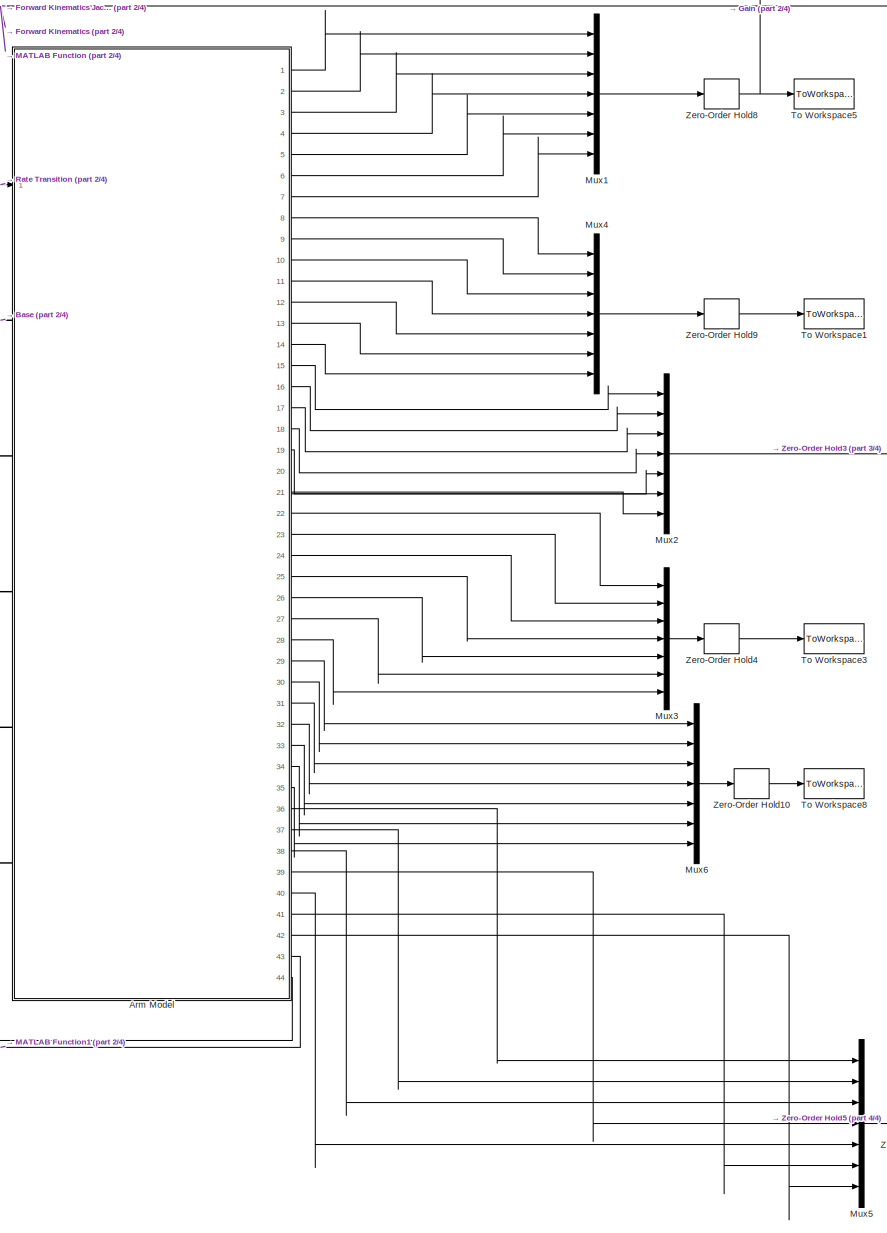
[diagram: root canvas - part 1/4, center side, full height]
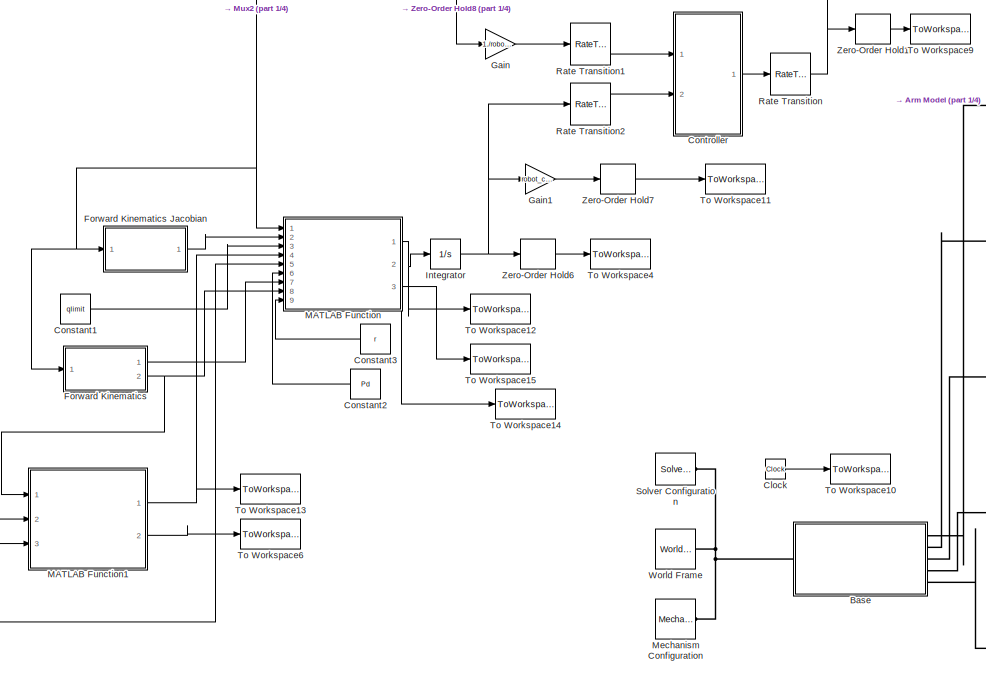
[diagram: root canvas - part 2/4, middle left region]
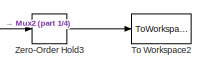
[diagram: root canvas - part 3/4, middle right region]
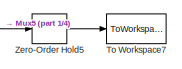
[diagram: root canvas - part 4/4, bottom right region]
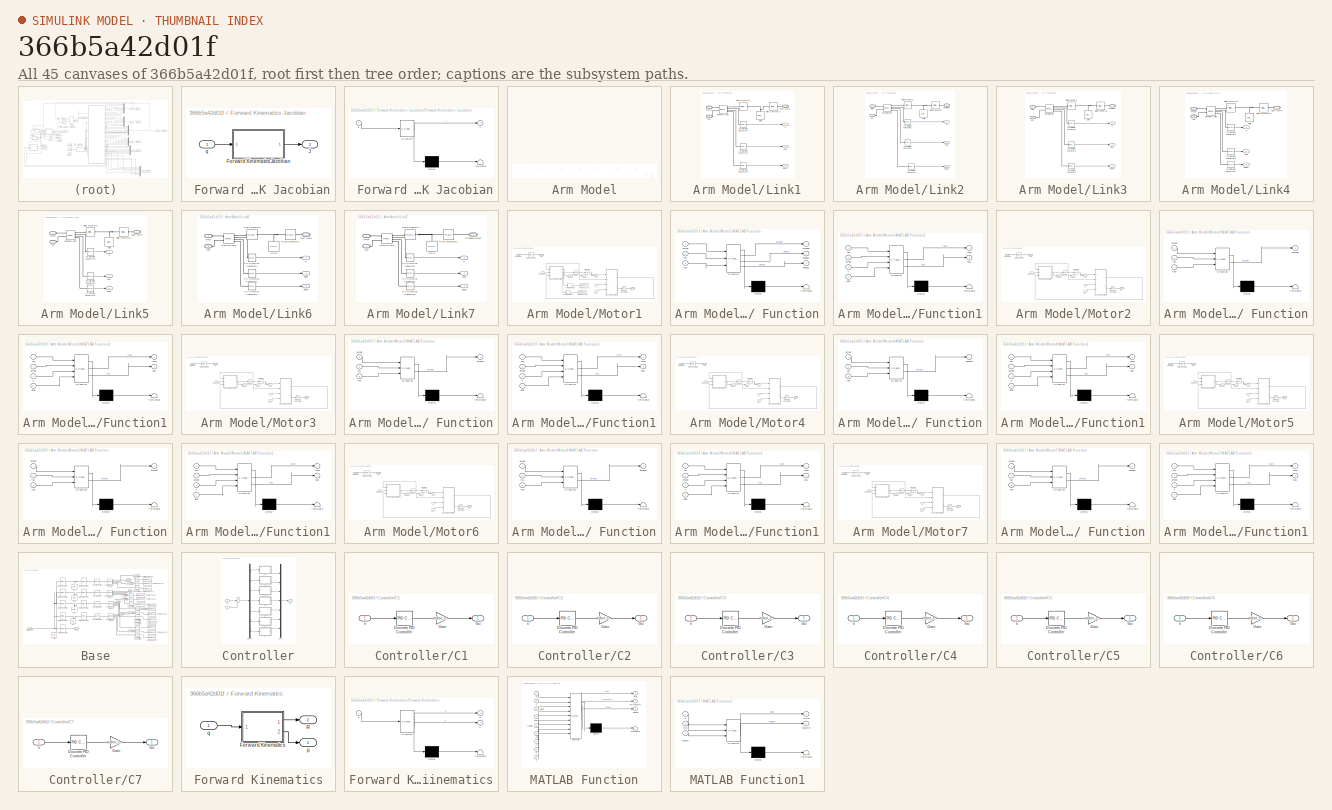
[diagram: thumbnail index - all 45 canvases of the model, root first then tree order]
MODEL slx_366b5a42d01f
KIND model
CONFIG AbsTol = auto
CONFIG EnableMultiTasking = on
CONFIG FixedStep = auto
CONFIG MaxStep = auto
CONFIG MinStep = auto
CONFIG RelTol = 1e-3
CONFIG SampleTimeConstraint = Unconstrained
CONFIG Solver = ode15s
CONFIG SolverName = ode15s
CONFIG StartTime = 0.0
CONFIG StopTime = T
BLOCK [SubSystem]  Forward Kinematics Jacobian
  Ports = [1, 1]
  RequestExecContextInheritance = off
BLOCK [SubSystem]  Forward Kinematics Jacobian/Forward Kinematics Jacobian
  ErrorFcn = Stateflow.Translate.translate
  PermitHierarchicalResolution = ExplicitOnly
  Ports = [1, 1]
  RequestExecContextInheritance = off
  SFBlockType = MATLAB Function
  TreatAsAtomicUnit = on
BLOCK [Demux]  Forward Kinematics Jacobian/Forward Kinematics Jacobian/ Demux 
  Outputs = 1
  Ports = [1, 1]
BLOCK [S-Function]  Forward Kinematics Jacobian/Forward Kinematics Jacobian/ SFunction 
  EnableBusSupport = on
  FunctionName = sf_sfun
  Parameters = H,P
  PortCounts = [1 2]
  Ports = [1, 2]
  SFcnIsStateOwnerBlock = off
  SFunctionDeploymentMode = off
  Tag = Stateflow S-Function 16
BLOCK [Terminator]  Forward Kinematics Jacobian/Forward Kinematics Jacobian/ Terminator 
BLOCK [Outport]  Forward Kinematics Jacobian/Forward Kinematics Jacobian/J
BLOCK [Inport]  Forward Kinematics Jacobian/Forward Kinematics Jacobian/q
BLOCK [Outport]  Forward Kinematics Jacobian/J
BLOCK [Inport]  Forward Kinematics Jacobian/q
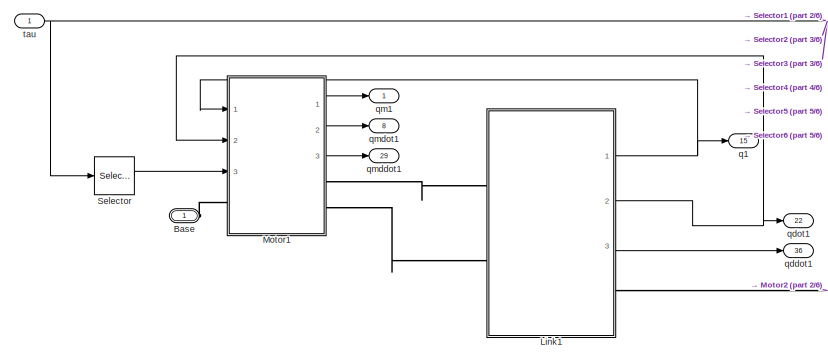
[diagram: Arm Model - part 1/6, middle left region]
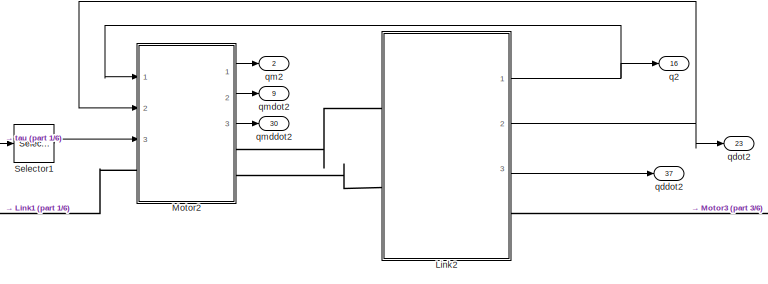
[diagram: Arm Model - part 2/6, middle left region]
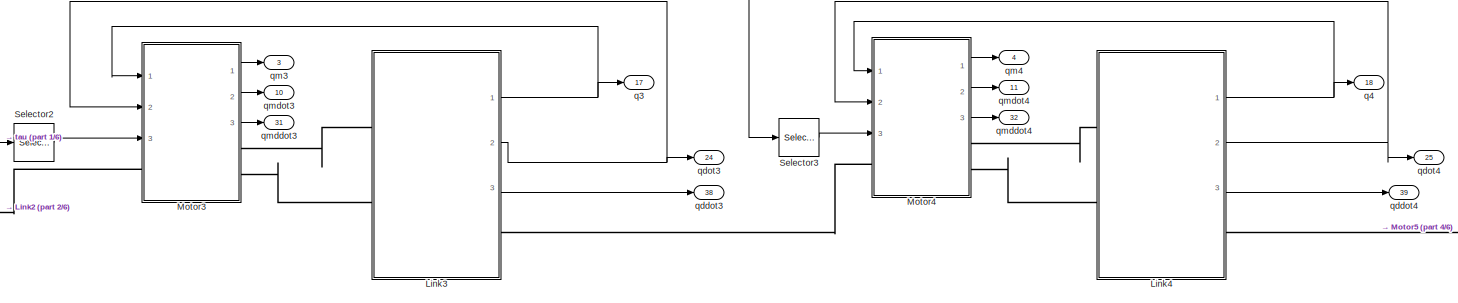
[diagram: Arm Model - part 3/6, central region]
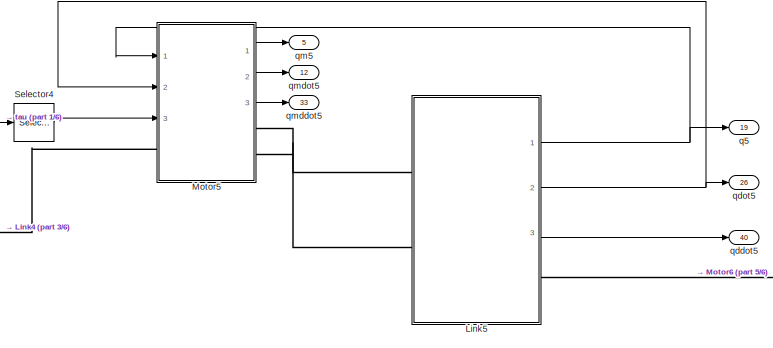
[diagram: Arm Model - part 4/6, central region]
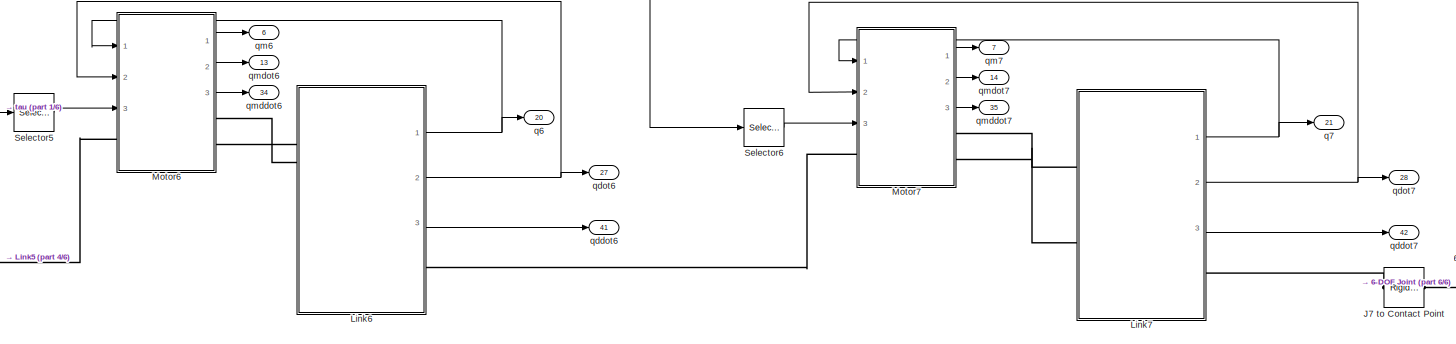
[diagram: Arm Model - part 5/6, middle right region]
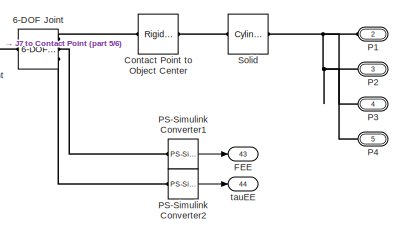
[diagram: Arm Model - part 6/6, bottom right region]
BLOCK [SubSystem] Arm Model
  Ports = [1, 44, 0, 0, 0, 5]
  RequestExecContextInheritance = off
BLOCK [Reference] Arm Model/6-DOF Joint  REF=sm_lib/Joints/6-DOF Joint
  Ports = [0, 0, 0, 0, 0, 1, 3]
  SourceBlock = sm_lib/Joints/6-DOF Joint
  SourceProductBaseCode = MS
  SourceType = 6-DOF Joint
BLOCK [PMIOPort] Arm Model/Base
  Side = Left
BLOCK [Reference] Arm Model/Contact Point to Object Center  REF=sm_lib/Frames and
Transforms/Rigid
Transform
  Ports = [0, 0, 0, 0, 0, 1, 1]
  SourceBlock = sm_lib/Frames and\nTransforms/Rigid\nTransform
  SourceProductBaseCode = MS
  SourceType = Rigid\nTransform
BLOCK [Outport] Arm Model/FEE
  Port = 43
  VectorParamsAs1DForOutWhenUnconnected = off
BLOCK [Reference] Arm Model/J7 to Contact Point  REF=sm_lib/Frames and
Transforms/Rigid
Transform
  Ports = [0, 0, 0, 0, 0, 1, 1]
  SourceBlock = sm_lib/Frames and\nTransforms/Rigid\nTransform
  SourceProductBaseCode = MS
  SourceType = Rigid\nTransform
BLOCK [SubSystem] Arm Model/Link1
  Ports = [0, 3, 0, 0, 0, 2, 1]
  RequestExecContextInheritance = off
BLOCK [PMIOPort] Arm Model/Link1/Motor
  Side = Left
BLOCK [PMIOPort] Arm Model/Link1/Next Motor
  Port = 3
  Side = Right
BLOCK [Reference] Arm Model/Link1/PS-Simulink Converter1  REF=nesl_utility/PS-Simulink
Converter
  Ports = [0, 1, 0, 0, 0, 1]
  SourceBlock = nesl_utility/PS-Simulink\nConverter
  SourceProductBaseCode = SS
  SourceType = PS-Simulink\nConverter
BLOCK [Reference] Arm Model/Link1/PS-Simulink Converter2  REF=nesl_utility/PS-Simulink
Converter
  Ports = [0, 1, 0, 0, 0, 1]
  SourceBlock = nesl_utility/PS-Simulink\nConverter
  SourceProductBaseCode = SS
  SourceType = PS-Simulink\nConverter
BLOCK [Reference] Arm Model/Link1/PS-Simulink Converter3  REF=nesl_utility/PS-Simulink
Converter
  Ports = [0, 1, 0, 0, 0, 1]
  SourceBlock = nesl_utility/PS-Simulink\nConverter
  SourceProductBaseCode = SS
  SourceType = PS-Simulink\nConverter
BLOCK [Reference] Arm Model/Link1/Revolute Joint  REF=sm_lib/Joints/Revolute Joint
  Ports = [0, 0, 0, 0, 0, 2, 4]
  SourceBlock = sm_lib/Joints/Revolute Joint
  SourceProductBaseCode = MS
  SourceType = Revolute Joint
BLOCK [Reference] Arm Model/Link1/Rigid Transform  REF=sm_lib/Frames and
Transforms/Rigid
Transform
  Ports = [0, 0, 0, 0, 0, 1, 1]
  SourceBlock = sm_lib/Frames and\nTransforms/Rigid\nTransform
  SourceProductBaseCode = MS
  SourceType = Rigid\nTransform
BLOCK [Reference] Arm Model/Link1/Rigid Transform1  REF=sm_lib/Frames and
Transforms/Rigid
Transform
  Ports = [0, 0, 0, 0, 0, 1, 1]
  SourceBlock = sm_lib/Frames and\nTransforms/Rigid\nTransform
  SourceProductBaseCode = MS
  SourceType = Rigid\nTransform
BLOCK [Reference] Arm Model/Link1/Solid  REF=sm_lib/Body Elements/Cylindrical Solid
  NameLocation = right
  Ports = [0, 0, 0, 0, 0, 0, 1]
  SourceBlock = sm_lib/Body Elements/Cylindrical Solid
  SourceProductBaseCode = MS
  SourceType = Cylindrical Solid
BLOCK [Outport] Arm Model/Link1/q
  VectorParamsAs1DForOutWhenUnconnected = off
BLOCK [Outport] Arm Model/Link1/qddot
  Port = 3
  VectorParamsAs1DForOutWhenUnconnected = off
BLOCK [Outport] Arm Model/Link1/qdot
  Port = 2
  VectorParamsAs1DForOutWhenUnconnected = off
BLOCK [PMIOPort] Arm Model/Link1/taur
  Port = 2
  Side = Left
BLOCK [SubSystem] Arm Model/Link2
  Ports = [0, 3, 0, 0, 0, 2, 1]
  RequestExecContextInheritance = off
BLOCK [PMIOPort] Arm Model/Link2/Motor
  Port = 2
  Side = Left
BLOCK [PMIOPort] Arm Model/Link2/Next Motor
  Side = Right
BLOCK [Reference] Arm Model/Link2/PS-Simulink Converter1  REF=nesl_utility/PS-Simulink
Converter
  Ports = [0, 1, 0, 0, 0, 1]
  SourceBlock = nesl_utility/PS-Simulink\nConverter
  SourceProductBaseCode = SS
  SourceType = PS-Simulink\nConverter
BLOCK [Reference] Arm Model/Link2/PS-Simulink Converter2  REF=nesl_utility/PS-Simulink
Converter
  Ports = [0, 1, 0, 0, 0, 1]
  SourceBlock = nesl_utility/PS-Simulink\nConverter
  SourceProductBaseCode = SS
  SourceType = PS-Simulink\nConverter
BLOCK [Reference] Arm Model/Link2/PS-Simulink Converter3  REF=nesl_utility/PS-Simulink
Converter
  Ports = [0, 1, 0, 0, 0, 1]
  SourceBlock = nesl_utility/PS-Simulink\nConverter
  SourceProductBaseCode = SS
  SourceType = PS-Simulink\nConverter
BLOCK [Reference] Arm Model/Link2/Revolute Joint  REF=sm_lib/Joints/Revolute Joint
  Ports = [0, 0, 0, 0, 0, 2, 4]
  SourceBlock = sm_lib/Joints/Revolute Joint
  SourceProductBaseCode = MS
  SourceType = Revolute Joint
BLOCK [Reference] Arm Model/Link2/Rigid Transform  REF=sm_lib/Frames and
Transforms/Rigid
Transform
  Ports = [0, 0, 0, 0, 0, 1, 1]
  SourceBlock = sm_lib/Frames and\nTransforms/Rigid\nTransform
  SourceProductBaseCode = MS
  SourceType = Rigid\nTransform
BLOCK [Reference] Arm Model/Link2/Rigid Transform1  REF=sm_lib/Frames and
Transforms/Rigid
Transform
  Ports = [0, 0, 0, 0, 0, 1, 1]
  SourceBlock = sm_lib/Frames and\nTransforms/Rigid\nTransform
  SourceProductBaseCode = MS
  SourceType = Rigid\nTransform
BLOCK [Reference] Arm Model/Link2/Solid  REF=sm_lib/Body Elements/Cylindrical Solid
  NameLocation = right
  Ports = [0, 0, 0, 0, 0, 0, 1]
  SourceBlock = sm_lib/Body Elements/Cylindrical Solid
  SourceProductBaseCode = MS
  SourceType = Cylindrical Solid
BLOCK [Outport] Arm Model/Link2/q
  VectorParamsAs1DForOutWhenUnconnected = off
BLOCK [Outport] Arm Model/Link2/qddot
  Port = 3
  VectorParamsAs1DForOutWhenUnconnected = off
BLOCK [Outport] Arm Model/Link2/qdot
  Port = 2
  VectorParamsAs1DForOutWhenUnconnected = off
BLOCK [PMIOPort] Arm Model/Link2/taur
  Port = 3
  Side = Left
BLOCK [SubSystem] Arm Model/Link3
  Ports = [0, 3, 0, 0, 0, 2, 1]
  RequestExecContextInheritance = off
BLOCK [PMIOPort] Arm Model/Link3/Motor
  Port = 2
  Side = Left
BLOCK [PMIOPort] Arm Model/Link3/Next Motor
  Side = Right
BLOCK [Reference] Arm Model/Link3/PS-Simulink Converter1  REF=nesl_utility/PS-Simulink
Converter
  Ports = [0, 1, 0, 0, 0, 1]
  SourceBlock = nesl_utility/PS-Simulink\nConverter
  SourceProductBaseCode = SS
  SourceType = PS-Simulink\nConverter
BLOCK [Reference] Arm Model/Link3/PS-Simulink Converter2  REF=nesl_utility/PS-Simulink
Converter
  Ports = [0, 1, 0, 0, 0, 1]
  SourceBlock = nesl_utility/PS-Simulink\nConverter
  SourceProductBaseCode = SS
  SourceType = PS-Simulink\nConverter
BLOCK [Reference] Arm Model/Link3/PS-Simulink Converter3  REF=nesl_utility/PS-Simulink
Converter
  Ports = [0, 1, 0, 0, 0, 1]
  SourceBlock = nesl_utility/PS-Simulink\nConverter
  SourceProductBaseCode = SS
  SourceType = PS-Simulink\nConverter
BLOCK [Reference] Arm Model/Link3/Revolute Joint  REF=sm_lib/Joints/Revolute Joint
  Ports = [0, 0, 0, 0, 0, 2, 4]
  SourceBlock = sm_lib/Joints/Revolute Joint
  SourceProductBaseCode = MS
  SourceType = Revolute Joint
BLOCK [Reference] Arm Model/Link3/Rigid Transform  REF=sm_lib/Frames and
Transforms/Rigid
Transform
  Ports = [0, 0, 0, 0, 0, 1, 1]
  SourceBlock = sm_lib/Frames and\nTransforms/Rigid\nTransform
  SourceProductBaseCode = MS
  SourceType = Rigid\nTransform
BLOCK [Reference] Arm Model/Link3/Rigid Transform1  REF=sm_lib/Frames and
Transforms/Rigid
Transform
  Ports = [0, 0, 0, 0, 0, 1, 1]
  SourceBlock = sm_lib/Frames and\nTransforms/Rigid\nTransform
  SourceProductBaseCode = MS
  SourceType = Rigid\nTransform
BLOCK [Reference] Arm Model/Link3/Solid  REF=sm_lib/Body Elements/Cylindrical Solid
  NameLocation = right
  Ports = [0, 0, 0, 0, 0, 0, 1]
  SourceBlock = sm_lib/Body Elements/Cylindrical Solid
  SourceProductBaseCode = MS
  SourceType = Cylindrical Solid
BLOCK [Outport] Arm Model/Link3/q
  VectorParamsAs1DForOutWhenUnconnected = off
BLOCK [Outport] Arm Model/Link3/qddot
  Port = 3
  VectorParamsAs1DForOutWhenUnconnected = off
BLOCK [Outport] Arm Model/Link3/qdot
  Port = 2
  VectorParamsAs1DForOutWhenUnconnected = off
BLOCK [PMIOPort] Arm Model/Link3/taur
  Port = 3
  Side = Left
BLOCK [SubSystem] Arm Model/Link4
  Ports = [0, 3, 0, 0, 0, 2, 1]
  RequestExecContextInheritance = off
BLOCK [PMIOPort] Arm Model/Link4/Motor
  Port = 2
  Side = Left
BLOCK [PMIOPort] Arm Model/Link4/Next Motor
  Side = Right
BLOCK [Reference] Arm Model/Link4/PS-Simulink Converter1  REF=nesl_utility/PS-Simulink
Converter
  Ports = [0, 1, 0, 0, 0, 1]
  SourceBlock = nesl_utility/PS-Simulink\nConverter
  SourceProductBaseCode = SS
  SourceType = PS-Simulink\nConverter
BLOCK [Reference] Arm Model/Link4/PS-Simulink Converter2  REF=nesl_utility/PS-Simulink
Converter
  Ports = [0, 1, 0, 0, 0, 1]
  SourceBlock = nesl_utility/PS-Simulink\nConverter
  SourceProductBaseCode = SS
  SourceType = PS-Simulink\nConverter
BLOCK [Reference] Arm Model/Link4/PS-Simulink Converter3  REF=nesl_utility/PS-Simulink
Converter
  Ports = [0, 1, 0, 0, 0, 1]
  SourceBlock = nesl_utility/PS-Simulink\nConverter
  SourceProductBaseCode = SS
  SourceType = PS-Simulink\nConverter
BLOCK [Reference] Arm Model/Link4/Revolute Joint  REF=sm_lib/Joints/Revolute Joint
  Ports = [0, 0, 0, 0, 0, 2, 4]
  SourceBlock = sm_lib/Joints/Revolute Joint
  SourceProductBaseCode = MS
  SourceType = Revolute Joint
BLOCK [Reference] Arm Model/Link4/Rigid Transform  REF=sm_lib/Frames and
Transforms/Rigid
Transform
  Ports = [0, 0, 0, 0, 0, 1, 1]
  SourceBlock = sm_lib/Frames and\nTransforms/Rigid\nTransform
  SourceProductBaseCode = MS
  SourceType = Rigid\nTransform
BLOCK [Reference] Arm Model/Link4/Rigid Transform1  REF=sm_lib/Frames and
Transforms/Rigid
Transform
  Ports = [0, 0, 0, 0, 0, 1, 1]
  SourceBlock = sm_lib/Frames and\nTransforms/Rigid\nTransform
  SourceProductBaseCode = MS
  SourceType = Rigid\nTransform
BLOCK [Reference] Arm Model/Link4/Solid  REF=sm_lib/Body Elements/Cylindrical Solid
  NameLocation = right
  Ports = [0, 0, 0, 0, 0, 0, 1]
  SourceBlock = sm_lib/Body Elements/Cylindrical Solid
  SourceProductBaseCode = MS
  SourceType = Cylindrical Solid
BLOCK [Outport] Arm Model/Link4/q
  VectorParamsAs1DForOutWhenUnconnected = off
BLOCK [Outport] Arm Model/Link4/qddot
  Port = 3
  VectorParamsAs1DForOutWhenUnconnected = off
BLOCK [Outport] Arm Model/Link4/qdot
  Port = 2
  VectorParamsAs1DForOutWhenUnconnected = off
BLOCK [PMIOPort] Arm Model/Link4/taur
  Port = 3
  Side = Left
BLOCK [SubSystem] Arm Model/Link5
  Ports = [0, 3, 0, 0, 0, 2, 1]
  RequestExecContextInheritance = off
BLOCK [PMIOPort] Arm Model/Link5/Motor
  Port = 2
  Side = Left
BLOCK [PMIOPort] Arm Model/Link5/Next Motor
  Side = Right
BLOCK [Reference] Arm Model/Link5/PS-Simulink Converter1  REF=nesl_utility/PS-Simulink
Converter
  Ports = [0, 1, 0, 0, 0, 1]
  SourceBlock = nesl_utility/PS-Simulink\nConverter
  SourceProductBaseCode = SS
  SourceType = PS-Simulink\nConverter
BLOCK [Reference] Arm Model/Link5/PS-Simulink Converter2  REF=nesl_utility/PS-Simulink
Converter
  Ports = [0, 1, 0, 0, 0, 1]
  SourceBlock = nesl_utility/PS-Simulink\nConverter
  SourceProductBaseCode = SS
  SourceType = PS-Simulink\nConverter
BLOCK [Reference] Arm Model/Link5/PS-Simulink Converter3  REF=nesl_utility/PS-Simulink
Converter
  Ports = [0, 1, 0, 0, 0, 1]
  SourceBlock = nesl_utility/PS-Simulink\nConverter
  SourceProductBaseCode = SS
  SourceType = PS-Simulink\nConverter
BLOCK [Reference] Arm Model/Link5/Revolute Joint  REF=sm_lib/Joints/Revolute Joint
  Ports = [0, 0, 0, 0, 0, 2, 4]
  SourceBlock = sm_lib/Joints/Revolute Joint
  SourceProductBaseCode = MS
  SourceType = Revolute Joint
BLOCK [Reference] Arm Model/Link5/Rigid Transform  REF=sm_lib/Frames and
Transforms/Rigid
Transform
  Ports = [0, 0, 0, 0, 0, 1, 1]
  SourceBlock = sm_lib/Frames and\nTransforms/Rigid\nTransform
  SourceProductBaseCode = MS
  SourceType = Rigid\nTransform
BLOCK [Reference] Arm Model/Link5/Rigid Transform1  REF=sm_lib/Frames and
Transforms/Rigid
Transform
  Ports = [0, 0, 0, 0, 0, 1, 1]
  SourceBlock = sm_lib/Frames and\nTransforms/Rigid\nTransform
  SourceProductBaseCode = MS
  SourceType = Rigid\nTransform
BLOCK [Reference] Arm Model/Link5/Solid  REF=sm_lib/Body Elements/Cylindrical Solid
  NameLocation = right
  Ports = [0, 0, 0, 0, 0, 0, 1]
  SourceBlock = sm_lib/Body Elements/Cylindrical Solid
  SourceProductBaseCode = MS
  SourceType = Cylindrical Solid
BLOCK [Outport] Arm Model/Link5/q
  VectorParamsAs1DForOutWhenUnconnected = off
BLOCK [Outport] Arm Model/Link5/qddot
  Port = 3
  VectorParamsAs1DForOutWhenUnconnected = off
BLOCK [Outport] Arm Model/Link5/qdot
  Port = 2
  VectorParamsAs1DForOutWhenUnconnected = off
BLOCK [PMIOPort] Arm Model/Link5/taur
  Port = 3
  Side = Left
BLOCK [SubSystem] Arm Model/Link6
  Ports = [0, 3, 0, 0, 0, 2, 1]
  RequestExecContextInheritance = off
BLOCK [PMIOPort] Arm Model/Link6/Motor
  Port = 2
  Side = Left
BLOCK [PMIOPort] Arm Model/Link6/Next Motor
  Side = Right
BLOCK [Reference] Arm Model/Link6/PS-Simulink Converter1  REF=nesl_utility/PS-Simulink
Converter
  Ports = [0, 1, 0, 0, 0, 1]
  SourceBlock = nesl_utility/PS-Simulink\nConverter
  SourceProductBaseCode = SS
  SourceType = PS-Simulink\nConverter
BLOCK [Reference] Arm Model/Link6/PS-Simulink Converter2  REF=nesl_utility/PS-Simulink
Converter
  Ports = [0, 1, 0, 0, 0, 1]
  SourceBlock = nesl_utility/PS-Simulink\nConverter
  SourceProductBaseCode = SS
  SourceType = PS-Simulink\nConverter
BLOCK [Reference] Arm Model/Link6/PS-Simulink Converter3  REF=nesl_utility/PS-Simulink
Converter
  Ports = [0, 1, 0, 0, 0, 1]
  SourceBlock = nesl_utility/PS-Simulink\nConverter
  SourceProductBaseCode = SS
  SourceType = PS-Simulink\nConverter
BLOCK [Reference] Arm Model/Link6/Revolute Joint  REF=sm_lib/Joints/Revolute Joint
  Ports = [0, 0, 0, 0, 0, 2, 4]
  SourceBlock = sm_lib/Joints/Revolute Joint
  SourceProductBaseCode = MS
  SourceType = Revolute Joint
BLOCK [Reference] Arm Model/Link6/Rigid Transform  REF=sm_lib/Frames and
Transforms/Rigid
Transform
  Ports = [0, 0, 0, 0, 0, 1, 1]
  SourceBlock = sm_lib/Frames and\nTransforms/Rigid\nTransform
  SourceProductBaseCode = MS
  SourceType = Rigid\nTransform
BLOCK [Reference] Arm Model/Link6/Rigid Transform1  REF=sm_lib/Frames and
Transforms/Rigid
Transform
  Ports = [0, 0, 0, 0, 0, 1, 1]
  SourceBlock = sm_lib/Frames and\nTransforms/Rigid\nTransform
  SourceProductBaseCode = MS
  SourceType = Rigid\nTransform
BLOCK [Reference] Arm Model/Link6/Solid  REF=sm_lib/Body Elements/Cylindrical Solid
  NameLocation = right
  Ports = [0, 0, 0, 0, 0, 0, 1]
  SourceBlock = sm_lib/Body Elements/Cylindrical Solid
  SourceProductBaseCode = MS
  SourceType = Cylindrical Solid
BLOCK [Outport] Arm Model/Link6/q
  VectorParamsAs1DForOutWhenUnconnected = off
BLOCK [Outport] Arm Model/Link6/qddot
  Port = 3
  VectorParamsAs1DForOutWhenUnconnected = off
BLOCK [Outport] Arm Model/Link6/qdot
  Port = 2
  VectorParamsAs1DForOutWhenUnconnected = off
BLOCK [PMIOPort] Arm Model/Link6/taur
  Port = 3
  Side = Left
BLOCK [SubSystem] Arm Model/Link7
  Ports = [0, 3, 0, 0, 0, 2, 1]
  RequestExecContextInheritance = off
BLOCK [PMIOPort] Arm Model/Link7/Grasped Object
  Port = 3
  Side = Right
BLOCK [PMIOPort] Arm Model/Link7/Motor
  Side = Left
BLOCK [Reference] Arm Model/Link7/PS-Simulink Converter1  REF=nesl_utility/PS-Simulink
Converter
  Ports = [0, 1, 0, 0, 0, 1]
  SourceBlock = nesl_utility/PS-Simulink\nConverter
  SourceProductBaseCode = SS
  SourceType = PS-Simulink\nConverter
BLOCK [Reference] Arm Model/Link7/PS-Simulink Converter2  REF=nesl_utility/PS-Simulink
Converter
  Ports = [0, 1, 0, 0, 0, 1]
  SourceBlock = nesl_utility/PS-Simulink\nConverter
  SourceProductBaseCode = SS
  SourceType = PS-Simulink\nConverter
BLOCK [Reference] Arm Model/Link7/PS-Simulink Converter3  REF=nesl_utility/PS-Simulink
Converter
  Ports = [0, 1, 0, 0, 0, 1]
  SourceBlock = nesl_utility/PS-Simulink\nConverter
  SourceProductBaseCode = SS
  SourceType = PS-Simulink\nConverter
BLOCK [Reference] Arm Model/Link7/Revolute Joint  REF=sm_lib/Joints/Revolute Joint
  Ports = [0, 0, 0, 0, 0, 2, 4]
  SourceBlock = sm_lib/Joints/Revolute Joint
  SourceProductBaseCode = MS
  SourceType = Revolute Joint
BLOCK [Reference] Arm Model/Link7/Rigid Transform  REF=sm_lib/Frames and
Transforms/Rigid
Transform
  Ports = [0, 0, 0, 0, 0, 1, 1]
  SourceBlock = sm_lib/Frames and\nTransforms/Rigid\nTransform
  SourceProductBaseCode = MS
  SourceType = Rigid\nTransform
BLOCK [Reference] Arm Model/Link7/Rigid Transform1  REF=sm_lib/Frames and
Transforms/Rigid
Transform
  Ports = [0, 0, 0, 0, 0, 1, 1]
  SourceBlock = sm_lib/Frames and\nTransforms/Rigid\nTransform
  SourceProductBaseCode = MS
  SourceType = Rigid\nTransform
BLOCK [Reference] Arm Model/Link7/Solid  REF=sm_lib/Body Elements/Cylindrical Solid
  NameLocation = right
  Ports = [0, 0, 0, 0, 0, 0, 1]
  SourceBlock = sm_lib/Body Elements/Cylindrical Solid
  SourceProductBaseCode = MS
  SourceType = Cylindrical Solid
BLOCK [Outport] Arm Model/Link7/q
  VectorParamsAs1DForOutWhenUnconnected = off
BLOCK [Outport] Arm Model/Link7/qddot
  Port = 3
  VectorParamsAs1DForOutWhenUnconnected = off
BLOCK [Outport] Arm Model/Link7/qdot
  Port = 2
  VectorParamsAs1DForOutWhenUnconnected = off
BLOCK [PMIOPort] Arm Model/Link7/taur
  Port = 2
  Side = Left
BLOCK [SubSystem] Arm Model/Motor1
  Ports = [3, 3, 0, 0, 0, 1, 2]
  RequestExecContextInheritance = off
BLOCK [Integrator] Arm Model/Motor1/Integrator
  InitialCondition = qm0
  Ports = [1, 1]
BLOCK [Integrator] Arm Model/Motor1/Integrator1
  InitialCondition = qmdot0
  Ports = [1, 1]
BLOCK [PMIOPort] Arm Model/Motor1/Joint Frame
  Port = 2
  Side = Left
BLOCK [PMIOPort] Arm Model/Motor1/Link
  Side = Right
BLOCK [SubSystem] Arm Model/Motor1/MATLAB Function
  ErrorFcn = Stateflow.Translate.translate
  PermitHierarchicalResolution = ExplicitOnly
  Ports = [3, 3]
  RequestExecContextInheritance = off
  SFBlockType = MATLAB Function
  TreatAsAtomicUnit = on
BLOCK [Demux] Arm Model/Motor1/MATLAB Function/ Demux 
  Outputs = 1
  Ports = [1, 1]
BLOCK [S-Function] Arm Model/Motor1/MATLAB Function/ SFunction 
  EnableBusSupport = on
  FunctionName = sf_sfun
  Parameters = Jm,bm
  PortCounts = [3 4]
  Ports = [3, 4]
  SFcnIsStateOwnerBlock = off
  SFunctionDeploymentMode = off
  Tag = Stateflow S-Function 4
BLOCK [Terminator] Arm Model/Motor1/MATLAB Function/ Terminator 
BLOCK [Outport] Arm Model/Motor1/MATLAB Function/debug1
  Port = 2
BLOCK [Outport] Arm Model/Motor1/MATLAB Function/debug2
  Port = 3
BLOCK [Outport] Arm Model/Motor1/MATLAB Function/qmddot
BLOCK [Inport] Arm Model/Motor1/MATLAB Function/qmdot
BLOCK [Inport] Arm Model/Motor1/MATLAB Function/tau
  Port = 2
BLOCK [Inport] Arm Model/Motor1/MATLAB Function/taur
  Port = 3
BLOCK [SubSystem] Arm Model/Motor1/MATLAB Function1
  ErrorFcn = Stateflow.Translate.translate
  PermitHierarchicalResolution = ExplicitOnly
  Ports = [4, 2]
  RequestExecContextInheritance = off
  SFBlockType = MATLAB Function
  TreatAsAtomicUnit = on
BLOCK [Demux] Arm Model/Motor1/MATLAB Function1/ Demux 
  Outputs = 1
  Ports = [1, 1]
BLOCK [S-Function] Arm Model/Motor1/MATLAB Function1/ SFunction 
  EnableBusSupport = on
  FunctionName = sf_sfun
  Parameters = K,N,bL
  PortCounts = [4 3]
  Ports = [4, 3]
  SFcnIsStateOwnerBlock = off
  SFunctionDeploymentMode = off
  Tag = Stateflow S-Function 2
BLOCK [Terminator] Arm Model/Motor1/MATLAB Function1/ Terminator 
BLOCK [Inport] Arm Model/Motor1/MATLAB Function1/q
  Port = 3
BLOCK [Inport] Arm Model/Motor1/MATLAB Function1/qdot
  Port = 4
BLOCK [Inport] Arm Model/Motor1/MATLAB Function1/qm
BLOCK [Inport] Arm Model/Motor1/MATLAB Function1/qmdot
  Port = 2
BLOCK [Outport] Arm Model/Motor1/MATLAB Function1/tauL
  Port = 2
  VectorParamsAs1DForOutWhenUnconnected = off
BLOCK [Outport] Arm Model/Motor1/MATLAB Function1/taum
  VectorParamsAs1DForOutWhenUnconnected = off
BLOCK [Inport] Arm Model/Motor1/Motor Torque
  Port = 3
BLOCK [Reference] Arm Model/Motor1/Rigid Transform  REF=sm_lib/Frames and
Transforms/Rigid
Transform
  Ports = [0, 0, 0, 0, 0, 1, 1]
  SourceBlock = sm_lib/Frames and\nTransforms/Rigid\nTransform
  SourceProductBaseCode = MS
  SourceType = Rigid\nTransform
BLOCK [Reference] Arm Model/Motor1/Simulink-PS Converter3  REF=nesl_utility/Simulink-PS
Converter
  Ports = [1, 0, 0, 0, 0, 0, 1]
  SourceBlock = nesl_utility/Simulink-PS\nConverter
  SourceProductBaseCode = SS
  SourceType = Simulink-PS\nConverter
BLOCK [ToWorkspace] Arm Model/Motor1/To Workspace1
  FixptAsFi = on
  MaxDataPoints = inf
  Ports = [1]
  SampleTime = ts_control
  VariableName = debug1
BLOCK [ToWorkspace] Arm Model/Motor1/To Workspace2
  FixptAsFi = on
  MaxDataPoints = inf
  Ports = [1]
  SampleTime = ts_control
  VariableName = debug2
BLOCK [ZeroOrderHold] Arm Model/Motor1/Zero-Order Hold1
  SampleTime = ts_control
BLOCK [ZeroOrderHold] Arm Model/Motor1/Zero-Order Hold9
  SampleTime = ts_control
BLOCK [Inport] Arm Model/Motor1/q
BLOCK [Inport] Arm Model/Motor1/qdot
  Port = 2
BLOCK [Outport] Arm Model/Motor1/qm
  VectorParamsAs1DForOutWhenUnconnected = off
BLOCK [Outport] Arm Model/Motor1/qmdot
  Port = 2
  VectorParamsAs1DForOutWhenUnconnected = off
BLOCK [Outport] Arm Model/Motor1/qmmdot
  Port = 3
  VectorParamsAs1DForOutWhenUnconnected = off
BLOCK [PMIOPort] Arm Model/Motor1/taur
  Port = 3
  Side = Right
BLOCK [SubSystem] Arm Model/Motor2
  Ports = [3, 3, 0, 0, 0, 1, 2]
  RequestExecContextInheritance = off
BLOCK [Integrator] Arm Model/Motor2/Integrator
  InitialCondition = qm0
  Ports = [1, 1]
BLOCK [Integrator] Arm Model/Motor2/Integrator1
  InitialCondition = qmdot0
  Ports = [1, 1]
BLOCK [PMIOPort] Arm Model/Motor2/Joint Frame
  Port = 2
  Side = Left
BLOCK [PMIOPort] Arm Model/Motor2/Link
  Side = Right
BLOCK [SubSystem] Arm Model/Motor2/MATLAB Function
  ErrorFcn = Stateflow.Translate.translate
  PermitHierarchicalResolution = ExplicitOnly
  Ports = [3, 1]
  RequestExecContextInheritance = off
  SFBlockType = MATLAB Function
  TreatAsAtomicUnit = on
BLOCK [Demux] Arm Model/Motor2/MATLAB Function/ Demux 
  Outputs = 1
  Ports = [1, 1]
BLOCK [S-Function] Arm Model/Motor2/MATLAB Function/ SFunction 
  EnableBusSupport = on
  FunctionName = sf_sfun
  Parameters = Jm,bm
  PortCounts = [3 2]
  Ports = [3, 2]
  SFcnIsStateOwnerBlock = off
  SFunctionDeploymentMode = off
  Tag = Stateflow S-Function 6
BLOCK [Terminator] Arm Model/Motor2/MATLAB Function/ Terminator 
BLOCK [Outport] Arm Model/Motor2/MATLAB Function/qmddot
BLOCK [Inport] Arm Model/Motor2/MATLAB Function/qmdot
BLOCK [Inport] Arm Model/Motor2/MATLAB Function/tau
  Port = 2
BLOCK [Inport] Arm Model/Motor2/MATLAB Function/taur
  Port = 3
BLOCK [SubSystem] Arm Model/Motor2/MATLAB Function1
  ErrorFcn = Stateflow.Translate.translate
  PermitHierarchicalResolution = ExplicitOnly
  Ports = [4, 2]
  RequestExecContextInheritance = off
  SFBlockType = MATLAB Function
  TreatAsAtomicUnit = on
BLOCK [Demux] Arm Model/Motor2/MATLAB Function1/ Demux 
  Outputs = 1
  Ports = [1, 1]
BLOCK [S-Function] Arm Model/Motor2/MATLAB Function1/ SFunction 
  EnableBusSupport = on
  FunctionName = sf_sfun
  Parameters = K,N,bL
  PortCounts = [4 3]
  Ports = [4, 3]
  SFcnIsStateOwnerBlock = off
  SFunctionDeploymentMode = off
  Tag = Stateflow S-Function 7
BLOCK [Terminator] Arm Model/Motor2/MATLAB Function1/ Terminator 
BLOCK [Inport] Arm Model/Motor2/MATLAB Function1/q
  Port = 3
BLOCK [Inport] Arm Model/Motor2/MATLAB Function1/qdot
  Port = 4
BLOCK [Inport] Arm Model/Motor2/MATLAB Function1/qm
BLOCK [Inport] Arm Model/Motor2/MATLAB Function1/qmdot
  Port = 2
BLOCK [Outport] Arm Model/Motor2/MATLAB Function1/tauL
  Port = 2
  VectorParamsAs1DForOutWhenUnconnected = off
BLOCK [Outport] Arm Model/Motor2/MATLAB Function1/taum
  VectorParamsAs1DForOutWhenUnconnected = off
BLOCK [Inport] Arm Model/Motor2/Motor Torque
  Port = 3
BLOCK [Reference] Arm Model/Motor2/Rigid Transform  REF=sm_lib/Frames and
Transforms/Rigid
Transform
  Ports = [0, 0, 0, 0, 0, 1, 1]
  SourceBlock = sm_lib/Frames and\nTransforms/Rigid\nTransform
  SourceProductBaseCode = MS
  SourceType = Rigid\nTransform
BLOCK [Reference] Arm Model/Motor2/Simulink-PS Converter3  REF=nesl_utility/Simulink-PS
Converter
  Ports = [1, 0, 0, 0, 0, 0, 1]
  SourceBlock = nesl_utility/Simulink-PS\nConverter
  SourceProductBaseCode = SS
  SourceType = Simulink-PS\nConverter
BLOCK [Inport] Arm Model/Motor2/q
BLOCK [Inport] Arm Model/Motor2/qdot
  Port = 2
BLOCK [Outport] Arm Model/Motor2/qm
  VectorParamsAs1DForOutWhenUnconnected = off
BLOCK [Outport] Arm Model/Motor2/qmdot
  Port = 2
  VectorParamsAs1DForOutWhenUnconnected = off
BLOCK [Outport] Arm Model/Motor2/qmmdot
  Port = 3
  VectorParamsAs1DForOutWhenUnconnected = off
BLOCK [PMIOPort] Arm Model/Motor2/taur
  Port = 3
  Side = Right
BLOCK [SubSystem] Arm Model/Motor3
  Ports = [3, 3, 0, 0, 0, 1, 2]
  RequestExecContextInheritance = off
BLOCK [Integrator] Arm Model/Motor3/Integrator
  InitialCondition = qm0
  Ports = [1, 1]
BLOCK [Integrator] Arm Model/Motor3/Integrator1
  InitialCondition = qmdot0
  Ports = [1, 1]
BLOCK [PMIOPort] Arm Model/Motor3/Joint Frame
  Port = 2
  Side = Left
BLOCK [PMIOPort] Arm Model/Motor3/Link
  Side = Right
BLOCK [SubSystem] Arm Model/Motor3/MATLAB Function
  ErrorFcn = Stateflow.Translate.translate
  PermitHierarchicalResolution = ExplicitOnly
  Ports = [3, 1]
  RequestExecContextInheritance = off
  SFBlockType = MATLAB Function
  TreatAsAtomicUnit = on
BLOCK [Demux] Arm Model/Motor3/MATLAB Function/ Demux 
  Outputs = 1
  Ports = [1, 1]
BLOCK [S-Function] Arm Model/Motor3/MATLAB Function/ SFunction 
  EnableBusSupport = on
  FunctionName = sf_sfun
  Parameters = Jm,bm
  PortCounts = [3 2]
  Ports = [3, 2]
  SFcnIsStateOwnerBlock = off
  SFunctionDeploymentMode = off
  Tag = Stateflow S-Function 1
BLOCK [Terminator] Arm Model/Motor3/MATLAB Function/ Terminator 
BLOCK [Outport] Arm Model/Motor3/MATLAB Function/qmddot
BLOCK [Inport] Arm Model/Motor3/MATLAB Function/qmdot
BLOCK [Inport] Arm Model/Motor3/MATLAB Function/tau
  Port = 2
BLOCK [Inport] Arm Model/Motor3/MATLAB Function/taur
  Port = 3
BLOCK [SubSystem] Arm Model/Motor3/MATLAB Function1
  ErrorFcn = Stateflow.Translate.translate
  PermitHierarchicalResolution = ExplicitOnly
  Ports = [4, 2]
  RequestExecContextInheritance = off
  SFBlockType = MATLAB Function
  TreatAsAtomicUnit = on
BLOCK [Demux] Arm Model/Motor3/MATLAB Function1/ Demux 
  Outputs = 1
  Ports = [1, 1]
BLOCK [S-Function] Arm Model/Motor3/MATLAB Function1/ SFunction 
  EnableBusSupport = on
  FunctionName = sf_sfun
  Parameters = K,N,bL
  PortCounts = [4 3]
  Ports = [4, 3]
  SFcnIsStateOwnerBlock = off
  SFunctionDeploymentMode = off
  Tag = Stateflow S-Function 8
BLOCK [Terminator] Arm Model/Motor3/MATLAB Function1/ Terminator 
BLOCK [Inport] Arm Model/Motor3/MATLAB Function1/q
  Port = 3
BLOCK [Inport] Arm Model/Motor3/MATLAB Function1/qdot
  Port = 4
BLOCK [Inport] Arm Model/Motor3/MATLAB Function1/qm
BLOCK [Inport] Arm Model/Motor3/MATLAB Function1/qmdot
  Port = 2
BLOCK [Outport] Arm Model/Motor3/MATLAB Function1/tauL
  Port = 2
  VectorParamsAs1DForOutWhenUnconnected = off
BLOCK [Outport] Arm Model/Motor3/MATLAB Function1/taum
  VectorParamsAs1DForOutWhenUnconnected = off
BLOCK [Inport] Arm Model/Motor3/Motor Torque
  Port = 3
BLOCK [Reference] Arm Model/Motor3/Rigid Transform  REF=sm_lib/Frames and
Transforms/Rigid
Transform
  Ports = [0, 0, 0, 0, 0, 1, 1]
  SourceBlock = sm_lib/Frames and\nTransforms/Rigid\nTransform
  SourceProductBaseCode = MS
  SourceType = Rigid\nTransform
BLOCK [Reference] Arm Model/Motor3/Simulink-PS Converter3  REF=nesl_utility/Simulink-PS
Converter
  Ports = [1, 0, 0, 0, 0, 0, 1]
  SourceBlock = nesl_utility/Simulink-PS\nConverter
  SourceProductBaseCode = SS
  SourceType = Simulink-PS\nConverter
BLOCK [Inport] Arm Model/Motor3/q
BLOCK [Inport] Arm Model/Motor3/qdot
  Port = 2
BLOCK [Outport] Arm Model/Motor3/qm
  VectorParamsAs1DForOutWhenUnconnected = off
BLOCK [Outport] Arm Model/Motor3/qmdot
  Port = 2
  VectorParamsAs1DForOutWhenUnconnected = off
BLOCK [Outport] Arm Model/Motor3/qmmdot
  Port = 3
  VectorParamsAs1DForOutWhenUnconnected = off
BLOCK [PMIOPort] Arm Model/Motor3/taur
  Port = 3
  Side = Right
BLOCK [SubSystem] Arm Model/Motor4
  Ports = [3, 3, 0, 0, 0, 1, 2]
  RequestExecContextInheritance = off
BLOCK [Integrator] Arm Model/Motor4/Integrator
  InitialCondition = qm0
  Ports = [1, 1]
BLOCK [Integrator] Arm Model/Motor4/Integrator1
  InitialCondition = qmdot0
  Ports = [1, 1]
BLOCK [PMIOPort] Arm Model/Motor4/Joint Frame
  Port = 2
  Side = Left
BLOCK [PMIOPort] Arm Model/Motor4/Link
  Side = Right
BLOCK [SubSystem] Arm Model/Motor4/MATLAB Function
  ErrorFcn = Stateflow.Translate.translate
  PermitHierarchicalResolution = ExplicitOnly
  Ports = [3, 1]
  RequestExecContextInheritance = off
  SFBlockType = MATLAB Function
  TreatAsAtomicUnit = on
BLOCK [Demux] Arm Model/Motor4/MATLAB Function/ Demux 
  Outputs = 1
  Ports = [1, 1]
BLOCK [S-Function] Arm Model/Motor4/MATLAB Function/ SFunction 
  EnableBusSupport = on
  FunctionName = sf_sfun
  Parameters = Jm,bm
  PortCounts = [3 2]
  Ports = [3, 2]
  SFcnIsStateOwnerBlock = off
  SFunctionDeploymentMode = off
  Tag = Stateflow S-Function 3
BLOCK [Terminator] Arm Model/Motor4/MATLAB Function/ Terminator 
BLOCK [Outport] Arm Model/Motor4/MATLAB Function/qmddot
BLOCK [Inport] Arm Model/Motor4/MATLAB Function/qmdot
BLOCK [Inport] Arm Model/Motor4/MATLAB Function/tau
  Port = 2
BLOCK [Inport] Arm Model/Motor4/MATLAB Function/taur
  Port = 3
BLOCK [SubSystem] Arm Model/Motor4/MATLAB Function1
  ErrorFcn = Stateflow.Translate.translate
  PermitHierarchicalResolution = ExplicitOnly
  Ports = [4, 2]
  RequestExecContextInheritance = off
  SFBlockType = MATLAB Function
  TreatAsAtomicUnit = on
BLOCK [Demux] Arm Model/Motor4/MATLAB Function1/ Demux 
  Outputs = 1
  Ports = [1, 1]
BLOCK [S-Function] Arm Model/Motor4/MATLAB Function1/ SFunction 
  EnableBusSupport = on
  FunctionName = sf_sfun
  Parameters = K,N,bL
  PortCounts = [4 3]
  Ports = [4, 3]
  SFcnIsStateOwnerBlock = off
  SFunctionDeploymentMode = off
  Tag = Stateflow S-Function 9
BLOCK [Terminator] Arm Model/Motor4/MATLAB Function1/ Terminator 
BLOCK [Inport] Arm Model/Motor4/MATLAB Function1/q
  Port = 3
BLOCK [Inport] Arm Model/Motor4/MATLAB Function1/qdot
  Port = 4
BLOCK [Inport] Arm Model/Motor4/MATLAB Function1/qm
BLOCK [Inport] Arm Model/Motor4/MATLAB Function1/qmdot
  Port = 2
BLOCK [Outport] Arm Model/Motor4/MATLAB Function1/tauL
  Port = 2
  VectorParamsAs1DForOutWhenUnconnected = off
BLOCK [Outport] Arm Model/Motor4/MATLAB Function1/taum
  VectorParamsAs1DForOutWhenUnconnected = off
BLOCK [Inport] Arm Model/Motor4/Motor Torque
  Port = 3
BLOCK [Reference] Arm Model/Motor4/Rigid Transform1  REF=sm_lib/Frames and
Transforms/Rigid
Transform
  Ports = [0, 0, 0, 0, 0, 1, 1]
  SourceBlock = sm_lib/Frames and\nTransforms/Rigid\nTransform
  SourceProductBaseCode = MS
  SourceType = Rigid\nTransform
BLOCK [Reference] Arm Model/Motor4/Simulink-PS Converter3  REF=nesl_utility/Simulink-PS
Converter
  Ports = [1, 0, 0, 0, 0, 0, 1]
  SourceBlock = nesl_utility/Simulink-PS\nConverter
  SourceProductBaseCode = SS
  SourceType = Simulink-PS\nConverter
BLOCK [Inport] Arm Model/Motor4/q
BLOCK [Inport] Arm Model/Motor4/qdot
  Port = 2
BLOCK [Outport] Arm Model/Motor4/qm
  VectorParamsAs1DForOutWhenUnconnected = off
BLOCK [Outport] Arm Model/Motor4/qmdot
  Port = 2
  VectorParamsAs1DForOutWhenUnconnected = off
BLOCK [Outport] Arm Model/Motor4/qmmdot
  Port = 3
  VectorParamsAs1DForOutWhenUnconnected = off
BLOCK [PMIOPort] Arm Model/Motor4/taur
  Port = 3
  Side = Right
BLOCK [SubSystem] Arm Model/Motor5
  Ports = [3, 3, 0, 0, 0, 1, 2]
  RequestExecContextInheritance = off
BLOCK [Integrator] Arm Model/Motor5/Integrator
  InitialCondition = qm0
  Ports = [1, 1]
BLOCK [Integrator] Arm Model/Motor5/Integrator1
  InitialCondition = qmdot0
  Ports = [1, 1]
BLOCK [PMIOPort] Arm Model/Motor5/Joint Frame
  Port = 2
  Side = Left
BLOCK [PMIOPort] Arm Model/Motor5/Link
  Side = Right
BLOCK [SubSystem] Arm Model/Motor5/MATLAB Function
  ErrorFcn = Stateflow.Translate.translate
  PermitHierarchicalResolution = ExplicitOnly
  Ports = [3, 1]
  RequestExecContextInheritance = off
  SFBlockType = MATLAB Function
  TreatAsAtomicUnit = on
BLOCK [Demux] Arm Model/Motor5/MATLAB Function/ Demux 
  Outputs = 1
  Ports = [1, 1]
BLOCK [S-Function] Arm Model/Motor5/MATLAB Function/ SFunction 
  EnableBusSupport = on
  FunctionName = sf_sfun
  Parameters = Jm,bm
  PortCounts = [3 2]
  Ports = [3, 2]
  SFcnIsStateOwnerBlock = off
  SFunctionDeploymentMode = off
  Tag = Stateflow S-Function 10
BLOCK [Terminator] Arm Model/Motor5/MATLAB Function/ Terminator 
BLOCK [Outport] Arm Model/Motor5/MATLAB Function/qmddot
BLOCK [Inport] Arm Model/Motor5/MATLAB Function/qmdot
BLOCK [Inport] Arm Model/Motor5/MATLAB Function/tau
  Port = 2
BLOCK [Inport] Arm Model/Motor5/MATLAB Function/taur
  Port = 3
BLOCK [SubSystem] Arm Model/Motor5/MATLAB Function1
  ErrorFcn = Stateflow.Translate.translate
  PermitHierarchicalResolution = ExplicitOnly
  Ports = [4, 2]
  RequestExecContextInheritance = off
  SFBlockType = MATLAB Function
  TreatAsAtomicUnit = on
BLOCK [Demux] Arm Model/Motor5/MATLAB Function1/ Demux 
  Outputs = 1
  Ports = [1, 1]
BLOCK [S-Function] Arm Model/Motor5/MATLAB Function1/ SFunction 
  EnableBusSupport = on
  FunctionName = sf_sfun
  Parameters = K,N,bL
  PortCounts = [4 3]
  Ports = [4, 3]
  SFcnIsStateOwnerBlock = off
  SFunctionDeploymentMode = off
  Tag = Stateflow S-Function 11
BLOCK [Terminator] Arm Model/Motor5/MATLAB Function1/ Terminator 
BLOCK [Inport] Arm Model/Motor5/MATLAB Function1/q
  Port = 3
BLOCK [Inport] Arm Model/Motor5/MATLAB Function1/qdot
  Port = 4
BLOCK [Inport] Arm Model/Motor5/MATLAB Function1/qm
BLOCK [Inport] Arm Model/Motor5/MATLAB Function1/qmdot
  Port = 2
BLOCK [Outport] Arm Model/Motor5/MATLAB Function1/tauL
  Port = 2
  VectorParamsAs1DForOutWhenUnconnected = off
BLOCK [Outport] Arm Model/Motor5/MATLAB Function1/taum
  VectorParamsAs1DForOutWhenUnconnected = off
BLOCK [Inport] Arm Model/Motor5/Motor Torque
  Port = 3
BLOCK [Reference] Arm Model/Motor5/Rigid Transform1  REF=sm_lib/Frames and
Transforms/Rigid
Transform
  Ports = [0, 0, 0, 0, 0, 1, 1]
  SourceBlock = sm_lib/Frames and\nTransforms/Rigid\nTransform
  SourceProductBaseCode = MS
  SourceType = Rigid\nTransform
BLOCK [Reference] Arm Model/Motor5/Simulink-PS Converter3  REF=nesl_utility/Simulink-PS
Converter
  Ports = [1, 0, 0, 0, 0, 0, 1]
  SourceBlock = nesl_utility/Simulink-PS\nConverter
  SourceProductBaseCode = SS
  SourceType = Simulink-PS\nConverter
BLOCK [Inport] Arm Model/Motor5/q
BLOCK [Inport] Arm Model/Motor5/qdot
  Port = 2
BLOCK [Outport] Arm Model/Motor5/qm
  VectorParamsAs1DForOutWhenUnconnected = off
BLOCK [Outport] Arm Model/Motor5/qmdot
  Port = 2
  VectorParamsAs1DForOutWhenUnconnected = off
BLOCK [Outport] Arm Model/Motor5/qmmdot
  Port = 3
  VectorParamsAs1DForOutWhenUnconnected = off
BLOCK [PMIOPort] Arm Model/Motor5/taur
  Port = 3
  Side = Right
BLOCK [SubSystem] Arm Model/Motor6
  Ports = [3, 3, 0, 0, 0, 1, 2]
  RequestExecContextInheritance = off
BLOCK [Integrator] Arm Model/Motor6/Integrator
  InitialCondition = qm0
  Ports = [1, 1]
BLOCK [Integrator] Arm Model/Motor6/Integrator1
  InitialCondition = qmdot0
  Ports = [1, 1]
BLOCK [PMIOPort] Arm Model/Motor6/Joint Frame
  Port = 2
  Side = Left
BLOCK [PMIOPort] Arm Model/Motor6/Link
  Side = Right
BLOCK [SubSystem] Arm Model/Motor6/MATLAB Function
  ErrorFcn = Stateflow.Translate.translate
  PermitHierarchicalResolution = ExplicitOnly
  Ports = [3, 1]
  RequestExecContextInheritance = off
  SFBlockType = MATLAB Function
  TreatAsAtomicUnit = on
BLOCK [Demux] Arm Model/Motor6/MATLAB Function/ Demux 
  Outputs = 1
  Ports = [1, 1]
BLOCK [S-Function] Arm Model/Motor6/MATLAB Function/ SFunction 
  EnableBusSupport = on
  FunctionName = sf_sfun
  Parameters = Jm,bm
  PortCounts = [3 2]
  Ports = [3, 2]
  SFcnIsStateOwnerBlock = off
  SFunctionDeploymentMode = off
  Tag = Stateflow S-Function 5
BLOCK [Terminator] Arm Model/Motor6/MATLAB Function/ Terminator 
BLOCK [Outport] Arm Model/Motor6/MATLAB Function/qmddot
BLOCK [Inport] Arm Model/Motor6/MATLAB Function/qmdot
BLOCK [Inport] Arm Model/Motor6/MATLAB Function/tau
  Port = 2
BLOCK [Inport] Arm Model/Motor6/MATLAB Function/taur
  Port = 3
BLOCK [SubSystem] Arm Model/Motor6/MATLAB Function1
  ErrorFcn = Stateflow.Translate.translate
  PermitHierarchicalResolution = ExplicitOnly
  Ports = [4, 2]
  RequestExecContextInheritance = off
  SFBlockType = MATLAB Function
  TreatAsAtomicUnit = on
BLOCK [Demux] Arm Model/Motor6/MATLAB Function1/ Demux 
  Outputs = 1
  Ports = [1, 1]
BLOCK [S-Function] Arm Model/Motor6/MATLAB Function1/ SFunction 
  EnableBusSupport = on
  FunctionName = sf_sfun
  Parameters = K,N,bL
  PortCounts = [4 3]
  Ports = [4, 3]
  SFcnIsStateOwnerBlock = off
  SFunctionDeploymentMode = off
  Tag = Stateflow S-Function 12
BLOCK [Terminator] Arm Model/Motor6/MATLAB Function1/ Terminator 
BLOCK [Inport] Arm Model/Motor6/MATLAB Function1/q
  Port = 3
BLOCK [Inport] Arm Model/Motor6/MATLAB Function1/qdot
  Port = 4
BLOCK [Inport] Arm Model/Motor6/MATLAB Function1/qm
BLOCK [Inport] Arm Model/Motor6/MATLAB Function1/qmdot
  Port = 2
BLOCK [Outport] Arm Model/Motor6/MATLAB Function1/tauL
  Port = 2
  VectorParamsAs1DForOutWhenUnconnected = off
BLOCK [Outport] Arm Model/Motor6/MATLAB Function1/taum
  VectorParamsAs1DForOutWhenUnconnected = off
BLOCK [Inport] Arm Model/Motor6/Motor Torque
  Port = 3
BLOCK [Reference] Arm Model/Motor6/Rigid Transform1  REF=sm_lib/Frames and
Transforms/Rigid
Transform
  Ports = [0, 0, 0, 0, 0, 1, 1]
  SourceBlock = sm_lib/Frames and\nTransforms/Rigid\nTransform
  SourceProductBaseCode = MS
  SourceType = Rigid\nTransform
BLOCK [Reference] Arm Model/Motor6/Simulink-PS Converter3  REF=nesl_utility/Simulink-PS
Converter
  Ports = [1, 0, 0, 0, 0, 0, 1]
  SourceBlock = nesl_utility/Simulink-PS\nConverter
  SourceProductBaseCode = SS
  SourceType = Simulink-PS\nConverter
BLOCK [Inport] Arm Model/Motor6/q
BLOCK [Inport] Arm Model/Motor6/qdot
  Port = 2
BLOCK [Outport] Arm Model/Motor6/qm
  VectorParamsAs1DForOutWhenUnconnected = off
BLOCK [Outport] Arm Model/Motor6/qmdot
  Port = 2
  VectorParamsAs1DForOutWhenUnconnected = off
BLOCK [Outport] Arm Model/Motor6/qmmdot
  Port = 3
  VectorParamsAs1DForOutWhenUnconnected = off
BLOCK [PMIOPort] Arm Model/Motor6/taur
  Port = 3
  Side = Right
BLOCK [SubSystem] Arm Model/Motor7
  Ports = [3, 3, 0, 0, 0, 1, 2]
  RequestExecContextInheritance = off
BLOCK [Integrator] Arm Model/Motor7/Integrator
  InitialCondition = qm0
  Ports = [1, 1]
BLOCK [Integrator] Arm Model/Motor7/Integrator1
  InitialCondition = qmdot0
  Ports = [1, 1]
BLOCK [PMIOPort] Arm Model/Motor7/Joint Frame
  Port = 2
  Side = Left
BLOCK [PMIOPort] Arm Model/Motor7/Link
  Side = Right
BLOCK [SubSystem] Arm Model/Motor7/MATLAB Function
  ErrorFcn = Stateflow.Translate.translate
  PermitHierarchicalResolution = ExplicitOnly
  Ports = [3, 1]
  RequestExecContextInheritance = off
  SFBlockType = MATLAB Function
  TreatAsAtomicUnit = on
BLOCK [Demux] Arm Model/Motor7/MATLAB Function/ Demux 
  Outputs = 1
  Ports = [1, 1]
BLOCK [S-Function] Arm Model/Motor7/MATLAB Function/ SFunction 
  EnableBusSupport = on
  FunctionName = sf_sfun
  Parameters = Jm,bm
  PortCounts = [3 2]
  Ports = [3, 2]
  SFcnIsStateOwnerBlock = off
  SFunctionDeploymentMode = off
  Tag = Stateflow S-Function 13
BLOCK [Terminator] Arm Model/Motor7/MATLAB Function/ Terminator 
BLOCK [Outport] Arm Model/Motor7/MATLAB Function/qmddot
BLOCK [Inport] Arm Model/Motor7/MATLAB Function/qmdot
BLOCK [Inport] Arm Model/Motor7/MATLAB Function/tau
  Port = 2
BLOCK [Inport] Arm Model/Motor7/MATLAB Function/taur
  Port = 3
BLOCK [SubSystem] Arm Model/Motor7/MATLAB Function1
  ErrorFcn = Stateflow.Translate.translate
  PermitHierarchicalResolution = ExplicitOnly
  Ports = [4, 2]
  RequestExecContextInheritance = off
  SFBlockType = MATLAB Function
  TreatAsAtomicUnit = on
BLOCK [Demux] Arm Model/Motor7/MATLAB Function1/ Demux 
  Outputs = 1
  Ports = [1, 1]
BLOCK [S-Function] Arm Model/Motor7/MATLAB Function1/ SFunction 
  EnableBusSupport = on
  FunctionName = sf_sfun
  Parameters = K,N,bL
  PortCounts = [4 3]
  Ports = [4, 3]
  SFcnIsStateOwnerBlock = off
  SFunctionDeploymentMode = off
  Tag = Stateflow S-Function 15
BLOCK [Terminator] Arm Model/Motor7/MATLAB Function1/ Terminator 
BLOCK [Inport] Arm Model/Motor7/MATLAB Function1/q
  Port = 3
BLOCK [Inport] Arm Model/Motor7/MATLAB Function1/qdot
  Port = 4
BLOCK [Inport] Arm Model/Motor7/MATLAB Function1/qm
BLOCK [Inport] Arm Model/Motor7/MATLAB Function1/qmdot
  Port = 2
BLOCK [Outport] Arm Model/Motor7/MATLAB Function1/tauL
  Port = 2
  VectorParamsAs1DForOutWhenUnconnected = off
BLOCK [Outport] Arm Model/Motor7/MATLAB Function1/taum
  VectorParamsAs1DForOutWhenUnconnected = off
BLOCK [Inport] Arm Model/Motor7/Motor Torque
  Port = 3
BLOCK [Reference] Arm Model/Motor7/Rigid Transform1  REF=sm_lib/Frames and
Transforms/Rigid
Transform
  Ports = [0, 0, 0, 0, 0, 1, 1]
  SourceBlock = sm_lib/Frames and\nTransforms/Rigid\nTransform
  SourceProductBaseCode = MS
  SourceType = Rigid\nTransform
BLOCK [Reference] Arm Model/Motor7/Simulink-PS Converter3  REF=nesl_utility/Simulink-PS
Converter
  Ports = [1, 0, 0, 0, 0, 0, 1]
  SourceBlock = nesl_utility/Simulink-PS\nConverter
  SourceProductBaseCode = SS
  SourceType = Simulink-PS\nConverter
BLOCK [Inport] Arm Model/Motor7/q
BLOCK [Inport] Arm Model/Motor7/qdot
  Port = 2
BLOCK [Outport] Arm Model/Motor7/qm
  VectorParamsAs1DForOutWhenUnconnected = off
BLOCK [Outport] Arm Model/Motor7/qmdot
  Port = 2
  VectorParamsAs1DForOutWhenUnconnected = off
BLOCK [Outport] Arm Model/Motor7/qmmdot
  Port = 3
  VectorParamsAs1DForOutWhenUnconnected = off
BLOCK [PMIOPort] Arm Model/Motor7/taur
  Port = 3
  Side = Right
BLOCK [PMIOPort] Arm Model/P1
  NameLocation = top
  Port = 2
  Side = Left
BLOCK [PMIOPort] Arm Model/P2
  NameLocation = top
  Port = 3
  Side = Left
BLOCK [PMIOPort] Arm Model/P3
  NameLocation = top
  Port = 4
  Side = Left
BLOCK [PMIOPort] Arm Model/P4
  NameLocation = top
  Port = 5
  Side = Left
BLOCK [Reference] Arm Model/PS-Simulink Converter1  REF=nesl_utility/PS-Simulink
Converter
  Ports = [0, 1, 0, 0, 0, 1]
  SourceBlock = nesl_utility/PS-Simulink\nConverter
  SourceProductBaseCode = SS
  SourceType = PS-Simulink\nConverter
BLOCK [Reference] Arm Model/PS-Simulink Converter2  REF=nesl_utility/PS-Simulink
Converter
  Ports = [0, 1, 0, 0, 0, 1]
  SourceBlock = nesl_utility/PS-Simulink\nConverter
  SourceProductBaseCode = SS
  SourceType = PS-Simulink\nConverter
BLOCK [Selector] Arm Model/Selector
  IndexOptions = Index vector (dialog)
  Indices = [1]
  InputPortWidth = 7
  OutputSizes = 1
  Ports = [1, 1]
BLOCK [Selector] Arm Model/Selector1
  IndexOptions = Index vector (dialog)
  Indices = [2]
  InputPortWidth = 7
  OutputSizes = 1
  Ports = [1, 1]
BLOCK [Selector] Arm Model/Selector2
  IndexOptions = Index vector (dialog)
  Indices = [3]
  InputPortWidth = 7
  OutputSizes = 1
  Ports = [1, 1]
BLOCK [Selector] Arm Model/Selector3
  IndexOptions = Index vector (dialog)
  Indices = [4]
  InputPortWidth = 7
  OutputSizes = 1
  Ports = [1, 1]
BLOCK [Selector] Arm Model/Selector4
  IndexOptions = Index vector (dialog)
  Indices = [5]
  InputPortWidth = 7
  OutputSizes = 1
  Ports = [1, 1]
BLOCK [Selector] Arm Model/Selector5
  IndexOptions = Index vector (dialog)
  Indices = [6]
  InputPortWidth = 7
  OutputSizes = 1
  Ports = [1, 1]
BLOCK [Selector] Arm Model/Selector6
  IndexOptions = Index vector (dialog)
  Indices = [7]
  InputPortWidth = 7
  OutputSizes = 1
  Ports = [1, 1]
BLOCK [Reference] Arm Model/Solid  REF=sm_lib/Body Elements/Cylindrical Solid
  NameLocation = top
  Ports = [0, 0, 0, 0, 0, 1, 1]
  SourceBlock = sm_lib/Body Elements/Cylindrical Solid
  SourceProductBaseCode = MS
  SourceType = Cylindrical Solid
BLOCK [Outport] Arm Model/q1
  Port = 15
  VectorParamsAs1DForOutWhenUnconnected = off
BLOCK [Outport] Arm Model/q2
  Port = 16
  VectorParamsAs1DForOutWhenUnconnected = off
BLOCK [Outport] Arm Model/q3
  Port = 17
  VectorParamsAs1DForOutWhenUnconnected = off
BLOCK [Outport] Arm Model/q4
  Port = 18
  VectorParamsAs1DForOutWhenUnconnected = off
BLOCK [Outport] Arm Model/q5
  Port = 19
  VectorParamsAs1DForOutWhenUnconnected = off
BLOCK [Outport] Arm Model/q6
  Port = 20
  VectorParamsAs1DForOutWhenUnconnected = off
BLOCK [Outport] Arm Model/q7
  Port = 21
  VectorParamsAs1DForOutWhenUnconnected = off
BLOCK [Outport] Arm Model/qddot1
  Port = 36
  VectorParamsAs1DForOutWhenUnconnected = off
BLOCK [Outport] Arm Model/qddot2
  Port = 37
  VectorParamsAs1DForOutWhenUnconnected = off
BLOCK [Outport] Arm Model/qddot3
  Port = 38
  VectorParamsAs1DForOutWhenUnconnected = off
BLOCK [Outport] Arm Model/qddot4
  Port = 39
  VectorParamsAs1DForOutWhenUnconnected = off
BLOCK [Outport] Arm Model/qddot5
  Port = 40
  VectorParamsAs1DForOutWhenUnconnected = off
BLOCK [Outport] Arm Model/qddot6
  Port = 41
  VectorParamsAs1DForOutWhenUnconnected = off
BLOCK [Outport] Arm Model/qddot7
  Port = 42
  VectorParamsAs1DForOutWhenUnconnected = off
BLOCK [Outport] Arm Model/qdot1
  Port = 22
  VectorParamsAs1DForOutWhenUnconnected = off
BLOCK [Outport] Arm Model/qdot2
  Port = 23
  VectorParamsAs1DForOutWhenUnconnected = off
BLOCK [Outport] Arm Model/qdot3
  Port = 24
  VectorParamsAs1DForOutWhenUnconnected = off
BLOCK [Outport] Arm Model/qdot4
  Port = 25
  VectorParamsAs1DForOutWhenUnconnected = off
BLOCK [Outport] Arm Model/qdot5
  Port = 26
  VectorParamsAs1DForOutWhenUnconnected = off
BLOCK [Outport] Arm Model/qdot6
  Port = 27
  VectorParamsAs1DForOutWhenUnconnected = off
BLOCK [Outport] Arm Model/qdot7
  Port = 28
  VectorParamsAs1DForOutWhenUnconnected = off
BLOCK [Outport] Arm Model/qm1
  VectorParamsAs1DForOutWhenUnconnected = off
BLOCK [Outport] Arm Model/qm2
  Port = 2
  VectorParamsAs1DForOutWhenUnconnected = off
BLOCK [Outport] Arm Model/qm3
  Port = 3
  VectorParamsAs1DForOutWhenUnconnected = off
BLOCK [Outport] Arm Model/qm4
  Port = 4
  VectorParamsAs1DForOutWhenUnconnected = off
BLOCK [Outport] Arm Model/qm5
  Port = 5
  VectorParamsAs1DForOutWhenUnconnected = off
BLOCK [Outport] Arm Model/qm6
  Port = 6
  VectorParamsAs1DForOutWhenUnconnected = off
BLOCK [Outport] Arm Model/qm7
  Port = 7
  VectorParamsAs1DForOutWhenUnconnected = off
BLOCK [Outport] Arm Model/qmddot1
  Port = 29
  VectorParamsAs1DForOutWhenUnconnected = off
BLOCK [Outport] Arm Model/qmddot2
  Port = 30
  VectorParamsAs1DForOutWhenUnconnected = off
BLOCK [Outport] Arm Model/qmddot3
  Port = 31
  VectorParamsAs1DForOutWhenUnconnected = off
BLOCK [Outport] Arm Model/qmddot4
  Port = 32
  VectorParamsAs1DForOutWhenUnconnected = off
BLOCK [Outport] Arm Model/qmddot5
  Port = 33
  VectorParamsAs1DForOutWhenUnconnected = off
BLOCK [Outport] Arm Model/qmddot6
  Port = 34
  VectorParamsAs1DForOutWhenUnconnected = off
BLOCK [Outport] Arm Model/qmddot7
  Port = 35
  VectorParamsAs1DForOutWhenUnconnected = off
BLOCK [Outport] Arm Model/qmdot1
  Port = 8
  VectorParamsAs1DForOutWhenUnconnected = off
BLOCK [Outport] Arm Model/qmdot2
  Port = 9
  VectorParamsAs1DForOutWhenUnconnected = off
BLOCK [Outport] Arm Model/qmdot3
  Port = 10
  VectorParamsAs1DForOutWhenUnconnected = off
BLOCK [Outport] Arm Model/qmdot4
  Port = 11
  VectorParamsAs1DForOutWhenUnconnected = off
BLOCK [Outport] Arm Model/qmdot5
  Port = 12
  VectorParamsAs1DForOutWhenUnconnected = off
BLOCK [Outport] Arm Model/qmdot6
  Port = 13
  VectorParamsAs1DForOutWhenUnconnected = off
BLOCK [Outport] Arm Model/qmdot7
  Port = 14
  VectorParamsAs1DForOutWhenUnconnected = off
BLOCK [Inport] Arm Model/tau
BLOCK [Outport] Arm Model/tauEE
  Port = 44
  VectorParamsAs1DForOutWhenUnconnected = off
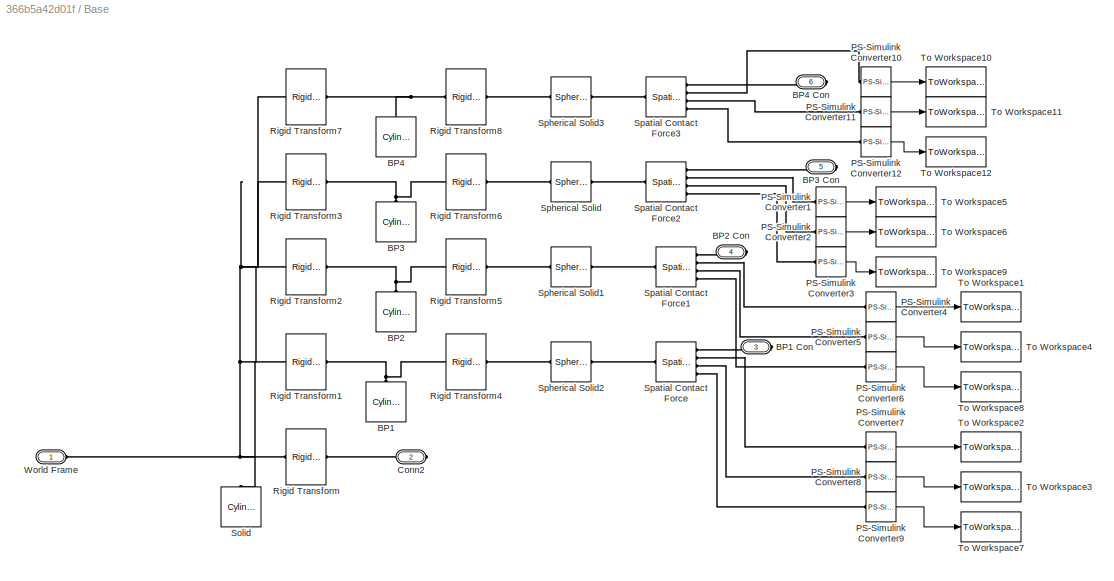
BLOCK [SubSystem] Base
  Ports = [0, 0, 0, 0, 0, 1, 5]
  RequestExecContextInheritance = off
BLOCK [Reference] Base/BP1  REF=sm_lib/Body Elements/Cylindrical Solid
  NameLocation = right
  Ports = [0, 0, 0, 0, 0, 0, 1]
  SourceBlock = sm_lib/Body Elements/Cylindrical Solid
  SourceProductBaseCode = MS
  SourceType = Cylindrical Solid
BLOCK [PMIOPort] Base/BP1 Con
  Port = 3
  Side = Right
BLOCK [Reference] Base/BP2  REF=sm_lib/Body Elements/Cylindrical Solid
  NameLocation = right
  Ports = [0, 0, 0, 0, 0, 0, 1]
  SourceBlock = sm_lib/Body Elements/Cylindrical Solid
  SourceProductBaseCode = MS
  SourceType = Cylindrical Solid
BLOCK [PMIOPort] Base/BP2 Con
  Port = 4
  Side = Right
BLOCK [Reference] Base/BP3  REF=sm_lib/Body Elements/Cylindrical Solid
  NameLocation = right
  Ports = [0, 0, 0, 0, 0, 0, 1]
  SourceBlock = sm_lib/Body Elements/Cylindrical Solid
  SourceProductBaseCode = MS
  SourceType = Cylindrical Solid
BLOCK [PMIOPort] Base/BP3 Con
  Port = 5
  Side = Right
BLOCK [Reference] Base/BP4  REF=sm_lib/Body Elements/Cylindrical Solid
  NameLocation = right
  Ports = [0, 0, 0, 0, 0, 0, 1]
  SourceBlock = sm_lib/Body Elements/Cylindrical Solid
  SourceProductBaseCode = MS
  SourceType = Cylindrical Solid
BLOCK [PMIOPort] Base/BP4 Con
  Port = 6
  Side = Right
BLOCK [PMIOPort] Base/Conn2
  Port = 2
  Side = Right
BLOCK [Reference] Base/PS-Simulink Converter1  REF=nesl_utility/PS-Simulink
Converter
  Ports = [0, 1, 0, 0, 0, 1]
  SourceBlock = nesl_utility/PS-Simulink\nConverter
  SourceProductBaseCode = SS
  SourceType = PS-Simulink\nConverter
BLOCK [Reference] Base/PS-Simulink Converter10  REF=nesl_utility/PS-Simulink
Converter
  Ports = [0, 1, 0, 0, 0, 1]
  SourceBlock = nesl_utility/PS-Simulink\nConverter
  SourceProductBaseCode = SS
  SourceType = PS-Simulink\nConverter
BLOCK [Reference] Base/PS-Simulink Converter11  REF=nesl_utility/PS-Simulink
Converter
  Ports = [0, 1, 0, 0, 0, 1]
  SourceBlock = nesl_utility/PS-Simulink\nConverter
  SourceProductBaseCode = SS
  SourceType = PS-Simulink\nConverter
BLOCK [Reference] Base/PS-Simulink Converter12  REF=nesl_utility/PS-Simulink
Converter
  Ports = [0, 1, 0, 0, 0, 1]
  SourceBlock = nesl_utility/PS-Simulink\nConverter
  SourceProductBaseCode = SS
  SourceType = PS-Simulink\nConverter
BLOCK [Reference] Base/PS-Simulink Converter2  REF=nesl_utility/PS-Simulink
Converter
  Ports = [0, 1, 0, 0, 0, 1]
  SourceBlock = nesl_utility/PS-Simulink\nConverter
  SourceProductBaseCode = SS
  SourceType = PS-Simulink\nConverter
BLOCK [Reference] Base/PS-Simulink Converter3  REF=nesl_utility/PS-Simulink
Converter
  Ports = [0, 1, 0, 0, 0, 1]
  SourceBlock = nesl_utility/PS-Simulink\nConverter
  SourceProductBaseCode = SS
  SourceType = PS-Simulink\nConverter
BLOCK [Reference] Base/PS-Simulink Converter4  REF=nesl_utility/PS-Simulink
Converter
  Ports = [0, 1, 0, 0, 0, 1]
  SourceBlock = nesl_utility/PS-Simulink\nConverter
  SourceProductBaseCode = SS
  SourceType = PS-Simulink\nConverter
BLOCK [Reference] Base/PS-Simulink Converter5  REF=nesl_utility/PS-Simulink
Converter
  Ports = [0, 1, 0, 0, 0, 1]
  SourceBlock = nesl_utility/PS-Simulink\nConverter
  SourceProductBaseCode = SS
  SourceType = PS-Simulink\nConverter
BLOCK [Reference] Base/PS-Simulink Converter6  REF=nesl_utility/PS-Simulink
Converter
  Ports = [0, 1, 0, 0, 0, 1]
  SourceBlock = nesl_utility/PS-Simulink\nConverter
  SourceProductBaseCode = SS
  SourceType = PS-Simulink\nConverter
BLOCK [Reference] Base/PS-Simulink Converter7  REF=nesl_utility/PS-Simulink
Converter
  Ports = [0, 1, 0, 0, 0, 1]
  SourceBlock = nesl_utility/PS-Simulink\nConverter
  SourceProductBaseCode = SS
  SourceType = PS-Simulink\nConverter
BLOCK [Reference] Base/PS-Simulink Converter8  REF=nesl_utility/PS-Simulink
Converter
  Ports = [0, 1, 0, 0, 0, 1]
  SourceBlock = nesl_utility/PS-Simulink\nConverter
  SourceProductBaseCode = SS
  SourceType = PS-Simulink\nConverter
BLOCK [Reference] Base/PS-Simulink Converter9  REF=nesl_utility/PS-Simulink
Converter
  Ports = [0, 1, 0, 0, 0, 1]
  SourceBlock = nesl_utility/PS-Simulink\nConverter
  SourceProductBaseCode = SS
  SourceType = PS-Simulink\nConverter
BLOCK [Reference] Base/Rigid Transform  REF=sm_lib/Frames and
Transforms/Rigid
Transform
  Ports = [0, 0, 0, 0, 0, 1, 1]
  SourceBlock = sm_lib/Frames and\nTransforms/Rigid\nTransform
  SourceProductBaseCode = MS
  SourceType = Rigid\nTransform
BLOCK [Reference] Base/Rigid Transform1  REF=sm_lib/Frames and
Transforms/Rigid
Transform
  Ports = [0, 0, 0, 0, 0, 1, 1]
  SourceBlock = sm_lib/Frames and\nTransforms/Rigid\nTransform
  SourceProductBaseCode = MS
  SourceType = Rigid\nTransform
BLOCK [Reference] Base/Rigid Transform2  REF=sm_lib/Frames and
Transforms/Rigid
Transform
  Ports = [0, 0, 0, 0, 0, 1, 1]
  SourceBlock = sm_lib/Frames and\nTransforms/Rigid\nTransform
  SourceProductBaseCode = MS
  SourceType = Rigid\nTransform
BLOCK [Reference] Base/Rigid Transform3  REF=sm_lib/Frames and
Transforms/Rigid
Transform
  Ports = [0, 0, 0, 0, 0, 1, 1]
  SourceBlock = sm_lib/Frames and\nTransforms/Rigid\nTransform
  SourceProductBaseCode = MS
  SourceType = Rigid\nTransform
BLOCK [Reference] Base/Rigid Transform4  REF=sm_lib/Frames and
Transforms/Rigid
Transform
  Ports = [0, 0, 0, 0, 0, 1, 1]
  SourceBlock = sm_lib/Frames and\nTransforms/Rigid\nTransform
  SourceProductBaseCode = MS
  SourceType = Rigid\nTransform
BLOCK [Reference] Base/Rigid Transform5  REF=sm_lib/Frames and
Transforms/Rigid
Transform
  Ports = [0, 0, 0, 0, 0, 1, 1]
  SourceBlock = sm_lib/Frames and\nTransforms/Rigid\nTransform
  SourceProductBaseCode = MS
  SourceType = Rigid\nTransform
BLOCK [Reference] Base/Rigid Transform6  REF=sm_lib/Frames and
Transforms/Rigid
Transform
  Ports = [0, 0, 0, 0, 0, 1, 1]
  SourceBlock = sm_lib/Frames and\nTransforms/Rigid\nTransform
  SourceProductBaseCode = MS
  SourceType = Rigid\nTransform
BLOCK [Reference] Base/Rigid Transform7  REF=sm_lib/Frames and
Transforms/Rigid
Transform
  Ports = [0, 0, 0, 0, 0, 1, 1]
  SourceBlock = sm_lib/Frames and\nTransforms/Rigid\nTransform
  SourceProductBaseCode = MS
  SourceType = Rigid\nTransform
BLOCK [Reference] Base/Rigid Transform8  REF=sm_lib/Frames and
Transforms/Rigid
Transform
  Ports = [0, 0, 0, 0, 0, 1, 1]
  SourceBlock = sm_lib/Frames and\nTransforms/Rigid\nTransform
  SourceProductBaseCode = MS
  SourceType = Rigid\nTransform
BLOCK [Reference] Base/Solid  REF=sm_lib/Body Elements/Cylindrical Solid
  NameLocation = right
  Ports = [0, 0, 0, 0, 0, 0, 1]
  SourceBlock = sm_lib/Body Elements/Cylindrical Solid
  SourceProductBaseCode = MS
  SourceType = Cylindrical Solid
BLOCK [Reference] Base/Spatial Contact Force  REF=sm_lib/Forces and
Torques/Spatial
Contact Force
  Ports = [0, 0, 0, 0, 0, 1, 4]
  SourceBlock = sm_lib/Forces and\nTorques/Spatial\nContact Force
  SourceProductBaseCode = MS
  SourceType = Spatial\nContact Force
BLOCK [Reference] Base/Spatial Contact Force1  REF=sm_lib/Forces and
Torques/Spatial
Contact Force
  Ports = [0, 0, 0, 0, 0, 1, 4]
  SourceBlock = sm_lib/Forces and\nTorques/Spatial\nContact Force
  SourceProductBaseCode = MS
  SourceType = Spatial\nContact Force
BLOCK [Reference] Base/Spatial Contact Force2  REF=sm_lib/Forces and
Torques/Spatial
Contact Force
  Ports = [0, 0, 0, 0, 0, 1, 4]
  SourceBlock = sm_lib/Forces and\nTorques/Spatial\nContact Force
  SourceProductBaseCode = MS
  SourceType = Spatial\nContact Force
BLOCK [Reference] Base/Spatial Contact Force3  REF=sm_lib/Forces and
Torques/Spatial
Contact Force
  Ports = [0, 0, 0, 0, 0, 1, 4]
  SourceBlock = sm_lib/Forces and\nTorques/Spatial\nContact Force
  SourceProductBaseCode = MS
  SourceType = Spatial\nContact Force
BLOCK [Reference] Base/Spherical Solid  REF=sm_lib/Body Elements/Spherical Solid
  NameLocation = top
  Ports = [0, 0, 0, 0, 0, 1, 1]
  SourceBlock = sm_lib/Body Elements/Spherical Solid
  SourceProductBaseCode = MS
  SourceType = Spherical Solid
BLOCK [Reference] Base/Spherical Solid1  REF=sm_lib/Body Elements/Spherical Solid
  NameLocation = top
  Ports = [0, 0, 0, 0, 0, 1, 1]
  SourceBlock = sm_lib/Body Elements/Spherical Solid
  SourceProductBaseCode = MS
  SourceType = Spherical Solid
BLOCK [Reference] Base/Spherical Solid2  REF=sm_lib/Body Elements/Spherical Solid
  NameLocation = top
  Ports = [0, 0, 0, 0, 0, 1, 1]
  SourceBlock = sm_lib/Body Elements/Spherical Solid
  SourceProductBaseCode = MS
  SourceType = Spherical Solid
BLOCK [Reference] Base/Spherical Solid3  REF=sm_lib/Body Elements/Spherical Solid
  NameLocation = top
  Ports = [0, 0, 0, 0, 0, 1, 1]
  SourceBlock = sm_lib/Body Elements/Spherical Solid
  SourceProductBaseCode = MS
  SourceType = Spherical Solid
BLOCK [ToWorkspace] Base/To Workspace1
  FixptAsFi = on
  MaxDataPoints = inf
  Ports = [1]
  SampleTime = ts_control
  VariableName = ds2
BLOCK [ToWorkspace] Base/To Workspace10
  FixptAsFi = on
  MaxDataPoints = inf
  Ports = [1]
  SampleTime = ts_control
  VariableName = ds4
BLOCK [ToWorkspace] Base/To Workspace11
  FixptAsFi = on
  MaxDataPoints = inf
  Ports = [1]
  SampleTime = ts_control
  VariableName = fn4
BLOCK [ToWorkspace] Base/To Workspace12
  FixptAsFi = on
  MaxDataPoints = inf
  Ports = [1]
  SampleTime = ts_control
  VariableName = ffric4
BLOCK [ToWorkspace] Base/To Workspace2
  FixptAsFi = on
  MaxDataPoints = inf
  Ports = [1]
  SampleTime = ts_control
  VariableName = ds1
BLOCK [ToWorkspace] Base/To Workspace3
  FixptAsFi = on
  MaxDataPoints = inf
  Ports = [1]
  SampleTime = ts_control
  VariableName = fn1
BLOCK [ToWorkspace] Base/To Workspace4
  FixptAsFi = on
  MaxDataPoints = inf
  Ports = [1]
  SampleTime = ts_control
  VariableName = fn2
BLOCK [ToWorkspace] Base/To Workspace5
  FixptAsFi = on
  MaxDataPoints = inf
  Ports = [1]
  SampleTime = ts_control
  VariableName = ds3
BLOCK [ToWorkspace] Base/To Workspace6
  FixptAsFi = on
  MaxDataPoints = inf
  Ports = [1]
  SampleTime = ts_control
  VariableName = fn3
BLOCK [ToWorkspace] Base/To Workspace7
  FixptAsFi = on
  MaxDataPoints = inf
  Ports = [1]
  SampleTime = ts_control
  VariableName = ffric1
BLOCK [ToWorkspace] Base/To Workspace8
  FixptAsFi = on
  MaxDataPoints = inf
  Ports = [1]
  SampleTime = ts_control
  VariableName = ffric2
BLOCK [ToWorkspace] Base/To Workspace9
  FixptAsFi = on
  MaxDataPoints = inf
  Ports = [1]
  SampleTime = ts_control
  VariableName = ffric3
BLOCK [PMIOPort] Base/World Frame
  Side = Left
BLOCK [Clock] Clock
BLOCK [Constant] Constant1
  Value = qlimit
BLOCK [Constant] Constant2
  NameLocation = top
  Value = Pd
BLOCK [Constant] Constant3
  NameLocation = top
  Value = r
BLOCK [SubSystem] Controller
  Ports = [2, 1]
  RequestExecContextInheritance = off
BLOCK [SubSystem] Controller/C1
  Ports = [1, 1]
  RequestExecContextInheritance = off
BLOCK [Reference] Controller/C1/Discrete PID Controller  REF=simulink/Continuous/PID Controller
  Ports = [1, 1]
  SourceBlock = simulink/Continuous/PID Controller
  SourceProductBaseCode = SL
  SourceType = PID 1dof
BLOCK [Gain] Controller/C1/Gain
  Gain = robot_const.mprops.N(1)
BLOCK [Inport] Controller/C1/e
BLOCK [Outport] Controller/C1/tau
  VectorParamsAs1DForOutWhenUnconnected = off
BLOCK [SubSystem] Controller/C2
  Ports = [1, 1]
  RequestExecContextInheritance = off
BLOCK [Reference] Controller/C2/Discrete PID Controller  REF=simulink/Continuous/PID Controller
  Ports = [1, 1]
  SourceBlock = simulink/Continuous/PID Controller
  SourceProductBaseCode = SL
  SourceType = PID 1dof
BLOCK [Gain] Controller/C2/Gain
  Gain = robot_const.mprops.N(2)
BLOCK [Inport] Controller/C2/e
BLOCK [Outport] Controller/C2/tau
  VectorParamsAs1DForOutWhenUnconnected = off
BLOCK [SubSystem] Controller/C3
  Ports = [1, 1]
  RequestExecContextInheritance = off
BLOCK [Reference] Controller/C3/Discrete PID Controller  REF=simulink/Continuous/PID Controller
  Ports = [1, 1]
  SourceBlock = simulink/Continuous/PID Controller
  SourceProductBaseCode = SL
  SourceType = PID 1dof
BLOCK [Gain] Controller/C3/Gain
  Gain = robot_const.mprops.N(3)
BLOCK [Inport] Controller/C3/e
BLOCK [Outport] Controller/C3/tau
  VectorParamsAs1DForOutWhenUnconnected = off
BLOCK [SubSystem] Controller/C4
  Ports = [1, 1]
  RequestExecContextInheritance = off
BLOCK [Reference] Controller/C4/Discrete PID Controller  REF=simulink/Continuous/PID Controller
  Ports = [1, 1]
  SourceBlock = simulink/Continuous/PID Controller
  SourceProductBaseCode = SL
  SourceType = PID 1dof
BLOCK [Gain] Controller/C4/Gain
  Gain = robot_const.mprops.N(4)
BLOCK [Inport] Controller/C4/e
BLOCK [Outport] Controller/C4/tau
  VectorParamsAs1DForOutWhenUnconnected = off
BLOCK [SubSystem] Controller/C5
  Ports = [1, 1]
  RequestExecContextInheritance = off
BLOCK [Reference] Controller/C5/Discrete PID Controller  REF=simulink/Continuous/PID Controller
  Ports = [1, 1]
  SourceBlock = simulink/Continuous/PID Controller
  SourceProductBaseCode = SL
  SourceType = PID 1dof
BLOCK [Gain] Controller/C5/Gain
  Gain = robot_const.mprops.N(5)
BLOCK [Inport] Controller/C5/e
BLOCK [Outport] Controller/C5/tau
  VectorParamsAs1DForOutWhenUnconnected = off
BLOCK [SubSystem] Controller/C6
  Ports = [1, 1]
  RequestExecContextInheritance = off
BLOCK [Reference] Controller/C6/Discrete PID Controller  REF=simulink/Continuous/PID Controller
  Ports = [1, 1]
  SourceBlock = simulink/Continuous/PID Controller
  SourceProductBaseCode = SL
  SourceType = PID 1dof
BLOCK [Gain] Controller/C6/Gain
  Gain = robot_const.mprops.N(6)
BLOCK [Inport] Controller/C6/e
BLOCK [Outport] Controller/C6/tau
  VectorParamsAs1DForOutWhenUnconnected = off
BLOCK [SubSystem] Controller/C7
  Ports = [1, 1]
  RequestExecContextInheritance = off
BLOCK [Reference] Controller/C7/Discrete PID Controller  REF=simulink/Continuous/PID Controller
  Ports = [1, 1]
  SourceBlock = simulink/Continuous/PID Controller
  SourceProductBaseCode = SL
  SourceType = PID 1dof
BLOCK [Gain] Controller/C7/Gain
  Gain = robot_const.mprops.N(7)
BLOCK [Inport] Controller/C7/e
BLOCK [Outport] Controller/C7/tau
  VectorParamsAs1DForOutWhenUnconnected = off
BLOCK [Demux] Controller/Demux
  Outputs = 7
  Ports = [1, 7]
BLOCK [Mux] Controller/Mux7
  DisplayOption = bar
  Inputs = 7
  Ports = [7, 1]
BLOCK [Sum] Controller/Sum
  Inputs = |+-
  Ports = [2, 1]
BLOCK [Inport] Controller/q
BLOCK [Inport] Controller/qd
  Port = 2
BLOCK [Outport] Controller/tau
BLOCK [SubSystem] Forward Kinematics
  Ports = [1, 2]
  RequestExecContextInheritance = off
BLOCK [SubSystem] Forward Kinematics/Forward Kinematics
  ErrorFcn = Stateflow.Translate.translate
  PermitHierarchicalResolution = ExplicitOnly
  Ports = [1, 2]
  RequestExecContextInheritance = off
  SFBlockType = MATLAB Function
  TreatAsAtomicUnit = on
BLOCK [Demux] Forward Kinematics/Forward Kinematics/ Demux 
  Outputs = 1
  Ports = [1, 1]
BLOCK [S-Function] Forward Kinematics/Forward Kinematics/ SFunction 
  EnableBusSupport = on
  FunctionName = sf_sfun
  Parameters = H,P
  PortCounts = [1 3]
  Ports = [1, 3]
  SFcnIsStateOwnerBlock = off
  SFunctionDeploymentMode = off
  Tag = Stateflow S-Function 17
BLOCK [Terminator] Forward Kinematics/Forward Kinematics/ Terminator 
BLOCK [Outport] Forward Kinematics/Forward Kinematics/R
BLOCK [Outport] Forward Kinematics/Forward Kinematics/p
  Port = 2
BLOCK [Inport] Forward Kinematics/Forward Kinematics/q
BLOCK [Outport] Forward Kinematics/R
  Port = 2
BLOCK [Outport] Forward Kinematics/p
BLOCK [Inport] Forward Kinematics/q
BLOCK [Gain] Gain
  Gain = 1./robot_const.mprops.N
BLOCK [Gain] Gain1
  Gain = robot_const.mprops.N
BLOCK [Integrator] Integrator
  InitialCondition = q0
  Ports = [1, 1]
BLOCK [SubSystem] MATLAB Function
  ErrorFcn = Stateflow.Translate.translate
  PermitHierarchicalResolution = ExplicitOnly
  Ports = [9, 3]
  RequestExecContextInheritance = off
  SFBlockType = MATLAB Function
  TreatAsAtomicUnit = on
BLOCK [Demux] MATLAB Function/ Demux 
  Outputs = 1
  Ports = [1, 1]
BLOCK [S-Function] MATLAB Function/ SFunction 
  EnableBusSupport = on
  FunctionName = sf_sfun
  PortCounts = [9 4]
  Ports = [9, 4]
  SFcnIsStateOwnerBlock = off
  SFunctionDeploymentMode = off
  Tag = Stateflow S-Function 14
BLOCK [Terminator] MATLAB Function/ Terminator 
BLOCK [Inport] MATLAB Function/FEE
  Port = 4
BLOCK [Inport] MATLAB Function/J
  Port = 2
BLOCK [Inport] MATLAB Function/P
  Port = 7
BLOCK [Inport] MATLAB Function/Pd
  Port = 6
BLOCK [Inport] MATLAB Function/R
  Port = 8
BLOCK [Outport] MATLAB Function/VGtaucomp
  Port = 2
BLOCK [Outport] MATLAB Function/debug
  Port = 3
BLOCK [Inport] MATLAB Function/q
BLOCK [Outport] MATLAB Function/qdot
BLOCK [Inport] MATLAB Function/qlimit
  Port = 3
BLOCK [Inport] MATLAB Function/r
  Port = 9
BLOCK [Inport] MATLAB Function/tauEE
  Port = 5
BLOCK [SubSystem] MATLAB Function1
  ErrorFcn = Stateflow.Translate.translate
  PermitHierarchicalResolution = ExplicitOnly
  Ports = [3, 2]
  RequestExecContextInheritance = off
  SFBlockType = MATLAB Function
  TreatAsAtomicUnit = on
BLOCK [Demux] MATLAB Function1/ Demux 
  Outputs = 1
  Ports = [1, 1]
BLOCK [S-Function] MATLAB Function1/ SFunction 
  EnableBusSupport = on
  FunctionName = sf_sfun
  PortCounts = [3 3]
  Ports = [3, 3]
  SFcnIsStateOwnerBlock = off
  SFunctionDeploymentMode = off
  Tag = Stateflow S-Function 18
BLOCK [Terminator] MATLAB Function1/ Terminator 
BLOCK [Inport] MATLAB Function1/R
BLOCK [Inport] MATLAB Function1/fEE
  Port = 2
BLOCK [Outport] MATLAB Function1/fEEw
BLOCK [Inport] MATLAB Function1/tauEE
  Port = 3
BLOCK [Outport] MATLAB Function1/tauEEw
  Port = 2
BLOCK [Reference] Mechanism Configuration  REF=sm_lib/Utilities/Mechanism
Configuration
  Ports = [0, 0, 0, 0, 0, 0, 1]
  SourceBlock = sm_lib/Utilities/Mechanism\nConfiguration
  SourceProductBaseCode = MS
  SourceType = Mechanism\nConfiguration
BLOCK [Mux] Mux1
  DisplayOption = bar
  Inputs = 7
  Ports = [7, 1]
BLOCK [Mux] Mux2
  DisplayOption = bar
  Inputs = 7
  Ports = [7, 1]
BLOCK [Mux] Mux3
  DisplayOption = bar
  Inputs = 7
  Ports = [7, 1]
BLOCK [Mux] Mux4
  DisplayOption = bar
  Inputs = 7
  Ports = [7, 1]
BLOCK [Mux] Mux5
  DisplayOption = bar
  Inputs = 7
  Ports = [7, 1]
BLOCK [Mux] Mux6
  DisplayOption = bar
  Inputs = 7
  Ports = [7, 1]
BLOCK [RateTransition] Rate Transition
BLOCK [RateTransition] Rate Transition1
BLOCK [RateTransition] Rate Transition2
BLOCK [Reference] Solver Configuration  REF=nesl_utility/Solver
Configuration
  Ports = [0, 0, 0, 0, 0, 0, 1]
  SourceBlock = nesl_utility/Solver\nConfiguration
  SourceProductBaseCode = SS
  SourceType = Solver\nConfiguration
BLOCK [ToWorkspace] To Workspace1
  FixptAsFi = on
  MaxDataPoints = inf
  Ports = [1]
  SampleTime = ts_control
  VariableName = qmdot
BLOCK [ToWorkspace] To Workspace10
  FixptAsFi = on
  MaxDataPoints = inf
  Ports = [1]
  SampleTime = ts_control
  VariableName = t_dt
BLOCK [ToWorkspace] To Workspace11
  FixptAsFi = on
  MaxDataPoints = inf
  Ports = [1]
  SampleTime = -1
  VariableName = qmd
BLOCK [ToWorkspace] To Workspace12
  FixptAsFi = on
  MaxDataPoints = inf
  Ports = [1]
  SampleTime = -1
  VariableName = qdotd
BLOCK [ToWorkspace] To Workspace13
  FixptAsFi = on
  MaxDataPoints = inf
  Ports = [1]
  SampleTime = ts_control
  VariableName = FEE
BLOCK [ToWorkspace] To Workspace14
  FixptAsFi = on
  MaxDataPoints = inf
  Ports = [1]
  SampleTime = -1
  VariableName = VGtaucomp
BLOCK [ToWorkspace] To Workspace15
  FixptAsFi = on
  MaxDataPoints = inf
  Ports = [1]
  SampleTime = -1
  VariableName = debug
BLOCK [ToWorkspace] To Workspace2
  FixptAsFi = on
  MaxDataPoints = inf
  Ports = [1]
  SampleTime = -1
  VariableName = q
BLOCK [ToWorkspace] To Workspace3
  FixptAsFi = on
  MaxDataPoints = inf
  Ports = [1]
  SampleTime = -1
  VariableName = qdot
BLOCK [ToWorkspace] To Workspace4
  FixptAsFi = on
  MaxDataPoints = inf
  Ports = [1]
  SampleTime = -1
  VariableName = qd
BLOCK [ToWorkspace] To Workspace5
  FixptAsFi = on
  MaxDataPoints = inf
  Ports = [1]
  SampleTime = ts_control
  VariableName = qm
BLOCK [ToWorkspace] To Workspace6
  FixptAsFi = on
  MaxDataPoints = inf
  Ports = [1]
  SampleTime = ts_control
  VariableName = tauEE
BLOCK [ToWorkspace] To Workspace7
  FixptAsFi = on
  MaxDataPoints = inf
  Ports = [1]
  SampleTime = -1
  VariableName = qddot
BLOCK [ToWorkspace] To Workspace8
  FixptAsFi = on
  MaxDataPoints = inf
  Ports = [1]
  SampleTime = ts_control
  VariableName = qmddot
BLOCK [ToWorkspace] To Workspace9
  FixptAsFi = on
  MaxDataPoints = inf
  Ports = [1]
  SampleTime = -1
  VariableName = tau
BLOCK [Reference] World Frame  REF=sm_lib/Frames and
Transforms/World Frame
  Ports = [0, 0, 0, 0, 0, 0, 1]
  SourceBlock = sm_lib/Frames and\nTransforms/World Frame
  SourceProductBaseCode = MS
  SourceType = World Frame
BLOCK [ZeroOrderHold] Zero-Order Hold1
  SampleTime = ts_control
BLOCK [ZeroOrderHold] Zero-Order Hold10
  SampleTime = ts_control
BLOCK [ZeroOrderHold] Zero-Order Hold3
  SampleTime = ts_control
BLOCK [ZeroOrderHold] Zero-Order Hold4
  SampleTime = ts_control
BLOCK [ZeroOrderHold] Zero-Order Hold5
  SampleTime = ts_control
BLOCK [ZeroOrderHold] Zero-Order Hold6
  SampleTime = ts_control
BLOCK [ZeroOrderHold] Zero-Order Hold7
  SampleTime = ts_control
BLOCK [ZeroOrderHold] Zero-Order Hold8
  SampleTime = ts_control
BLOCK [ZeroOrderHold] Zero-Order Hold9
  SampleTime = ts_control
LINE  Forward Kinematics Jacobian/Forward Kinematics Jacobian:1 ->  Forward Kinematics Jacobian/J:1
LINE  Forward Kinematics Jacobian/q:1 ->  Forward Kinematics Jacobian/Forward Kinematics Jacobian:1
LINE  Forward Kinematics Jacobian:1 -> MATLAB Function:2
LINE Arm Model/Link1/PS-Simulink Converter1:1 -> Arm Model/Link1/q:1
LINE Arm Model/Link1/PS-Simulink Converter2:1 -> Arm Model/Link1/qdot:1
LINE Arm Model/Link1/PS-Simulink Converter3:1 -> Arm Model/Link1/qddot:1
NET Arm Model/Link1:1 -> Arm Model/Motor1:1, Arm Model/q1:1
NET Arm Model/Link1:2 -> Arm Model/Motor1:2, Arm Model/qdot1:1
LINE Arm Model/Link1:3 -> Arm Model/qddot1:1
LINE Arm Model/Link2/PS-Simulink Converter1:1 -> Arm Model/Link2/q:1
LINE Arm Model/Link2/PS-Simulink Converter2:1 -> Arm Model/Link2/qdot:1
LINE Arm Model/Link2/PS-Simulink Converter3:1 -> Arm Model/Link2/qddot:1
NET Arm Model/Link2:1 -> Arm Model/Motor2:1, Arm Model/q2:1
NET Arm Model/Link2:2 -> Arm Model/Motor2:2, Arm Model/qdot2:1
LINE Arm Model/Link2:3 -> Arm Model/qddot2:1
LINE Arm Model/Link3/PS-Simulink Converter1:1 -> Arm Model/Link3/q:1
LINE Arm Model/Link3/PS-Simulink Converter2:1 -> Arm Model/Link3/qdot:1
LINE Arm Model/Link3/PS-Simulink Converter3:1 -> Arm Model/Link3/qddot:1
NET Arm Model/Link3:1 -> Arm Model/Motor3:1, Arm Model/q3:1
NET Arm Model/Link3:2 -> Arm Model/Motor3:2, Arm Model/qdot3:1
LINE Arm Model/Link3:3 -> Arm Model/qddot3:1
LINE Arm Model/Link4/PS-Simulink Converter1:1 -> Arm Model/Link4/q:1
LINE Arm Model/Link4/PS-Simulink Converter2:1 -> Arm Model/Link4/qdot:1
LINE Arm Model/Link4/PS-Simulink Converter3:1 -> Arm Model/Link4/qddot:1
NET Arm Model/Link4:1 -> Arm Model/Motor4:1, Arm Model/q4:1
NET Arm Model/Link4:2 -> Arm Model/Motor4:2, Arm Model/qdot4:1
LINE Arm Model/Link4:3 -> Arm Model/qddot4:1
LINE Arm Model/Link5/PS-Simulink Converter1:1 -> Arm Model/Link5/q:1
LINE Arm Model/Link5/PS-Simulink Converter2:1 -> Arm Model/Link5/qdot:1
LINE Arm Model/Link5/PS-Simulink Converter3:1 -> Arm Model/Link5/qddot:1
NET Arm Model/Link5:1 -> Arm Model/Motor5:1, Arm Model/q5:1
NET Arm Model/Link5:2 -> Arm Model/Motor5:2, Arm Model/qdot5:1
LINE Arm Model/Link5:3 -> Arm Model/qddot5:1
LINE Arm Model/Link6/PS-Simulink Converter1:1 -> Arm Model/Link6/q:1
LINE Arm Model/Link6/PS-Simulink Converter2:1 -> Arm Model/Link6/qdot:1
LINE Arm Model/Link6/PS-Simulink Converter3:1 -> Arm Model/Link6/qddot:1
NET Arm Model/Link6:1 -> Arm Model/Motor6:1, Arm Model/q6:1
NET Arm Model/Link6:2 -> Arm Model/Motor6:2, Arm Model/qdot6:1
LINE Arm Model/Link6:3 -> Arm Model/qddot6:1
LINE Arm Model/Link7/PS-Simulink Converter1:1 -> Arm Model/Link7/q:1
LINE Arm Model/Link7/PS-Simulink Converter2:1 -> Arm Model/Link7/qdot:1
LINE Arm Model/Link7/PS-Simulink Converter3:1 -> Arm Model/Link7/qddot:1
NET Arm Model/Link7:1 -> Arm Model/Motor7:1, Arm Model/q7:1
NET Arm Model/Link7:2 -> Arm Model/Motor7:2, Arm Model/qdot7:1
LINE Arm Model/Link7:3 -> Arm Model/qddot7:1
NET Arm Model/Motor1/Integrator1:1 -> Arm Model/Motor1/Integrator:1, Arm Model/Motor1/MATLAB Function1:2, Arm Model/Motor1/MATLAB Function:1, Arm Model/Motor1/qmdot:1
NET Arm Model/Motor1/Integrator:1 -> Arm Model/Motor1/MATLAB Function1:1, Arm Model/Motor1/qm:1
LINE Arm Model/Motor1/MATLAB Function1:1 -> Arm Model/Motor1/MATLAB Function:3
LINE Arm Model/Motor1/MATLAB Function1:2 -> Arm Model/Motor1/Simulink-PS Converter3:1
NET Arm Model/Motor1/MATLAB Function:1 -> Arm Model/Motor1/Integrator1:1, Arm Model/Motor1/qmmdot:1
LINE Arm Model/Motor1/MATLAB Function:2 -> Arm Model/Motor1/Zero-Order Hold9:1
LINE Arm Model/Motor1/MATLAB Function:3 -> Arm Model/Motor1/Zero-Order Hold1:1
LINE Arm Model/Motor1/Motor Torque:1 -> Arm Model/Motor1/MATLAB Function:2
LINE Arm Model/Motor1/Zero-Order Hold1:1 -> Arm Model/Motor1/To Workspace2:1
LINE Arm Model/Motor1/Zero-Order Hold9:1 -> Arm Model/Motor1/To Workspace1:1
LINE Arm Model/Motor1/q:1 -> Arm Model/Motor1/MATLAB Function1:3
LINE Arm Model/Motor1/qdot:1 -> Arm Model/Motor1/MATLAB Function1:4
LINE Arm Model/Motor1:1 -> Arm Model/qm1:1
LINE Arm Model/Motor1:2 -> Arm Model/qmdot1:1
LINE Arm Model/Motor1:3 -> Arm Model/qmddot1:1
NET Arm Model/Motor2/Integrator1:1 -> Arm Model/Motor2/Integrator:1, Arm Model/Motor2/MATLAB Function1:2, Arm Model/Motor2/MATLAB Function:1, Arm Model/Motor2/qmdot:1
NET Arm Model/Motor2/Integrator:1 -> Arm Model/Motor2/MATLAB Function1:1, Arm Model/Motor2/qm:1
LINE Arm Model/Motor2/MATLAB Function1:1 -> Arm Model/Motor2/MATLAB Function:3
LINE Arm Model/Motor2/MATLAB Function1:2 -> Arm Model/Motor2/Simulink-PS Converter3:1
NET Arm Model/Motor2/MATLAB Function:1 -> Arm Model/Motor2/Integrator1:1, Arm Model/Motor2/qmmdot:1
LINE Arm Model/Motor2/Motor Torque:1 -> Arm Model/Motor2/MATLAB Function:2
LINE Arm Model/Motor2/q:1 -> Arm Model/Motor2/MATLAB Function1:3
LINE Arm Model/Motor2/qdot:1 -> Arm Model/Motor2/MATLAB Function1:4
LINE Arm Model/Motor2:1 -> Arm Model/qm2:1
LINE Arm Model/Motor2:2 -> Arm Model/qmdot2:1
LINE Arm Model/Motor2:3 -> Arm Model/qmddot2:1
NET Arm Model/Motor3/Integrator1:1 -> Arm Model/Motor3/Integrator:1, Arm Model/Motor3/MATLAB Function1:2, Arm Model/Motor3/MATLAB Function:1, Arm Model/Motor3/qmdot:1
NET Arm Model/Motor3/Integrator:1 -> Arm Model/Motor3/MATLAB Function1:1, Arm Model/Motor3/qm:1
LINE Arm Model/Motor3/MATLAB Function1:1 -> Arm Model/Motor3/MATLAB Function:3
LINE Arm Model/Motor3/MATLAB Function1:2 -> Arm Model/Motor3/Simulink-PS Converter3:1
NET Arm Model/Motor3/MATLAB Function:1 -> Arm Model/Motor3/Integrator1:1, Arm Model/Motor3/qmmdot:1
LINE Arm Model/Motor3/Motor Torque:1 -> Arm Model/Motor3/MATLAB Function:2
LINE Arm Model/Motor3/q:1 -> Arm Model/Motor3/MATLAB Function1:3
LINE Arm Model/Motor3/qdot:1 -> Arm Model/Motor3/MATLAB Function1:4
LINE Arm Model/Motor3:1 -> Arm Model/qm3:1
LINE Arm Model/Motor3:2 -> Arm Model/qmdot3:1
LINE Arm Model/Motor3:3 -> Arm Model/qmddot3:1
NET Arm Model/Motor4/Integrator1:1 -> Arm Model/Motor4/Integrator:1, Arm Model/Motor4/MATLAB Function1:2, Arm Model/Motor4/MATLAB Function:1, Arm Model/Motor4/qmdot:1
NET Arm Model/Motor4/Integrator:1 -> Arm Model/Motor4/MATLAB Function1:1, Arm Model/Motor4/qm:1
LINE Arm Model/Motor4/MATLAB Function1:1 -> Arm Model/Motor4/MATLAB Function:3
LINE Arm Model/Motor4/MATLAB Function1:2 -> Arm Model/Motor4/Simulink-PS Converter3:1
NET Arm Model/Motor4/MATLAB Function:1 -> Arm Model/Motor4/Integrator1:1, Arm Model/Motor4/qmmdot:1
LINE Arm Model/Motor4/Motor Torque:1 -> Arm Model/Motor4/MATLAB Function:2
LINE Arm Model/Motor4/q:1 -> Arm Model/Motor4/MATLAB Function1:3
LINE Arm Model/Motor4/qdot:1 -> Arm Model/Motor4/MATLAB Function1:4
LINE Arm Model/Motor4:1 -> Arm Model/qm4:1
LINE Arm Model/Motor4:2 -> Arm Model/qmdot4:1
LINE Arm Model/Motor4:3 -> Arm Model/qmddot4:1
NET Arm Model/Motor5/Integrator1:1 -> Arm Model/Motor5/Integrator:1, Arm Model/Motor5/MATLAB Function1:2, Arm Model/Motor5/MATLAB Function:1, Arm Model/Motor5/qmdot:1
NET Arm Model/Motor5/Integrator:1 -> Arm Model/Motor5/MATLAB Function1:1, Arm Model/Motor5/qm:1
LINE Arm Model/Motor5/MATLAB Function1:1 -> Arm Model/Motor5/MATLAB Function:3
LINE Arm Model/Motor5/MATLAB Function1:2 -> Arm Model/Motor5/Simulink-PS Converter3:1
NET Arm Model/Motor5/MATLAB Function:1 -> Arm Model/Motor5/Integrator1:1, Arm Model/Motor5/qmmdot:1
LINE Arm Model/Motor5/Motor Torque:1 -> Arm Model/Motor5/MATLAB Function:2
LINE Arm Model/Motor5/q:1 -> Arm Model/Motor5/MATLAB Function1:3
LINE Arm Model/Motor5/qdot:1 -> Arm Model/Motor5/MATLAB Function1:4
LINE Arm Model/Motor5:1 -> Arm Model/qm5:1
LINE Arm Model/Motor5:2 -> Arm Model/qmdot5:1
LINE Arm Model/Motor5:3 -> Arm Model/qmddot5:1
NET Arm Model/Motor6/Integrator1:1 -> Arm Model/Motor6/Integrator:1, Arm Model/Motor6/MATLAB Function1:2, Arm Model/Motor6/MATLAB Function:1, Arm Model/Motor6/qmdot:1
NET Arm Model/Motor6/Integrator:1 -> Arm Model/Motor6/MATLAB Function1:1, Arm Model/Motor6/qm:1
LINE Arm Model/Motor6/MATLAB Function1:1 -> Arm Model/Motor6/MATLAB Function:3
LINE Arm Model/Motor6/MATLAB Function1:2 -> Arm Model/Motor6/Simulink-PS Converter3:1
NET Arm Model/Motor6/MATLAB Function:1 -> Arm Model/Motor6/Integrator1:1, Arm Model/Motor6/qmmdot:1
LINE Arm Model/Motor6/Motor Torque:1 -> Arm Model/Motor6/MATLAB Function:2
LINE Arm Model/Motor6/q:1 -> Arm Model/Motor6/MATLAB Function1:3
LINE Arm Model/Motor6/qdot:1 -> Arm Model/Motor6/MATLAB Function1:4
LINE Arm Model/Motor6:1 -> Arm Model/qm6:1
LINE Arm Model/Motor6:2 -> Arm Model/qmdot6:1
LINE Arm Model/Motor6:3 -> Arm Model/qmddot6:1
NET Arm Model/Motor7/Integrator1:1 -> Arm Model/Motor7/Integrator:1, Arm Model/Motor7/MATLAB Function1:2, Arm Model/Motor7/MATLAB Function:1, Arm Model/Motor7/qmdot:1
NET Arm Model/Motor7/Integrator:1 -> Arm Model/Motor7/MATLAB Function1:1, Arm Model/Motor7/qm:1
LINE Arm Model/Motor7/MATLAB Function1:1 -> Arm Model/Motor7/MATLAB Function:3
LINE Arm Model/Motor7/MATLAB Function1:2 -> Arm Model/Motor7/Simulink-PS Converter3:1
NET Arm Model/Motor7/MATLAB Function:1 -> Arm Model/Motor7/Integrator1:1, Arm Model/Motor7/qmmdot:1
LINE Arm Model/Motor7/Motor Torque:1 -> Arm Model/Motor7/MATLAB Function:2
LINE Arm Model/Motor7/q:1 -> Arm Model/Motor7/MATLAB Function1:3
LINE Arm Model/Motor7/qdot:1 -> Arm Model/Motor7/MATLAB Function1:4
LINE Arm Model/Motor7:1 -> Arm Model/qm7:1
LINE Arm Model/Motor7:2 -> Arm Model/qmdot7:1
LINE Arm Model/Motor7:3 -> Arm Model/qmddot7:1
LINE Arm Model/PS-Simulink Converter1:1 -> Arm Model/FEE:1
LINE Arm Model/PS-Simulink Converter2:1 -> Arm Model/tauEE:1
LINE Arm Model/Selector1:1 -> Arm Model/Motor2:3
LINE Arm Model/Selector2:1 -> Arm Model/Motor3:3
LINE Arm Model/Selector3:1 -> Arm Model/Motor4:3
LINE Arm Model/Selector4:1 -> Arm Model/Motor5:3
LINE Arm Model/Selector5:1 -> Arm Model/Motor6:3
LINE Arm Model/Selector6:1 -> Arm Model/Motor7:3
LINE Arm Model/Selector:1 -> Arm Model/Motor1:3
NET Arm Model/tau:1 -> Arm Model/Selector1:1, Arm Model/Selector2:1, Arm Model/Selector3:1, Arm Model/Selector4:1, Arm Model/Selector5:1, Arm Model/Selector6:1, Arm Model/Selector:1
LINE Arm Model:1 -> Mux1:1
LINE Arm Model:10 -> Mux4:3
LINE Arm Model:11 -> Mux4:4
LINE Arm Model:12 -> Mux4:5
LINE Arm Model:13 -> Mux4:6
LINE Arm Model:14 -> Mux4:7
LINE Arm Model:15 -> Mux2:1
LINE Arm Model:16 -> Mux2:2
LINE Arm Model:17 -> Mux2:3
LINE Arm Model:18 -> Mux2:4
LINE Arm Model:19 -> Mux2:5
LINE Arm Model:2 -> Mux1:2
LINE Arm Model:20 -> Mux2:6
LINE Arm Model:21 -> Mux2:7
LINE Arm Model:22 -> Mux3:1
LINE Arm Model:23 -> Mux3:2
LINE Arm Model:24 -> Mux3:3
LINE Arm Model:25 -> Mux3:4
LINE Arm Model:26 -> Mux3:5
LINE Arm Model:27 -> Mux3:6
LINE Arm Model:28 -> Mux3:7
LINE Arm Model:29 -> Mux6:1
LINE Arm Model:3 -> Mux1:3
LINE Arm Model:30 -> Mux6:2
LINE Arm Model:31 -> Mux6:3
LINE Arm Model:32 -> Mux6:4
LINE Arm Model:33 -> Mux6:5
LINE Arm Model:34 -> Mux6:6
LINE Arm Model:35 -> Mux6:7
LINE Arm Model:36 -> Mux5:1
LINE Arm Model:37 -> Mux5:2
LINE Arm Model:38 -> Mux5:3
LINE Arm Model:39 -> Mux5:4
LINE Arm Model:4 -> Mux1:4
LINE Arm Model:40 -> Mux5:5
LINE Arm Model:41 -> Mux5:6
LINE Arm Model:42 -> Mux5:7
LINE Arm Model:43 -> MATLAB Function1:2
NET Arm Model:44 -> MATLAB Function1:3, MATLAB Function:5
LINE Arm Model:5 -> Mux1:5
LINE Arm Model:6 -> Mux1:6
LINE Arm Model:7 -> Mux1:7
LINE Arm Model:8 -> Mux4:1
LINE Arm Model:9 -> Mux4:2
LINE Base/PS-Simulink Converter10:1 -> Base/To Workspace10:1
LINE Base/PS-Simulink Converter11:1 -> Base/To Workspace11:1
LINE Base/PS-Simulink Converter12:1 -> Base/To Workspace12:1
LINE Base/PS-Simulink Converter1:1 -> Base/To Workspace5:1
LINE Base/PS-Simulink Converter2:1 -> Base/To Workspace6:1
LINE Base/PS-Simulink Converter3:1 -> Base/To Workspace9:1
LINE Base/PS-Simulink Converter4:1 -> Base/To Workspace1:1
LINE Base/PS-Simulink Converter5:1 -> Base/To Workspace4:1
LINE Base/PS-Simulink Converter6:1 -> Base/To Workspace8:1
LINE Base/PS-Simulink Converter7:1 -> Base/To Workspace2:1
LINE Base/PS-Simulink Converter8:1 -> Base/To Workspace3:1
LINE Base/PS-Simulink Converter9:1 -> Base/To Workspace7:1
LINE Clock:1 -> To Workspace10:1
LINE Constant1:1 -> MATLAB Function:3
LINE Constant2:1 -> MATLAB Function:6
LINE Constant3:1 -> MATLAB Function:9
LINE Controller/C1/Discrete PID Controller:1 -> Controller/C1/Gain:1
LINE Controller/C1/Gain:1 -> Controller/C1/tau:1
LINE Controller/C1/e:1 -> Controller/C1/Discrete PID Controller:1
LINE Controller/C1:1 -> Controller/Mux7:1
LINE Controller/C2/Discrete PID Controller:1 -> Controller/C2/Gain:1
LINE Controller/C2/Gain:1 -> Controller/C2/tau:1
LINE Controller/C2/e:1 -> Controller/C2/Discrete PID Controller:1
LINE Controller/C2:1 -> Controller/Mux7:2
LINE Controller/C3/Discrete PID Controller:1 -> Controller/C3/Gain:1
LINE Controller/C3/Gain:1 -> Controller/C3/tau:1
LINE Controller/C3/e:1 -> Controller/C3/Discrete PID Controller:1
LINE Controller/C3:1 -> Controller/Mux7:3
LINE Controller/C4/Discrete PID Controller:1 -> Controller/C4/Gain:1
LINE Controller/C4/Gain:1 -> Controller/C4/tau:1
LINE Controller/C4/e:1 -> Controller/C4/Discrete PID Controller:1
LINE Controller/C4:1 -> Controller/Mux7:4
LINE Controller/C5/Discrete PID Controller:1 -> Controller/C5/Gain:1
LINE Controller/C5/Gain:1 -> Controller/C5/tau:1
LINE Controller/C5/e:1 -> Controller/C5/Discrete PID Controller:1
LINE Controller/C5:1 -> Controller/Mux7:5
LINE Controller/C6/Discrete PID Controller:1 -> Controller/C6/Gain:1
LINE Controller/C6/Gain:1 -> Controller/C6/tau:1
LINE Controller/C6/e:1 -> Controller/C6/Discrete PID Controller:1
LINE Controller/C6:1 -> Controller/Mux7:6
LINE Controller/C7/Discrete PID Controller:1 -> Controller/C7/Gain:1
LINE Controller/C7/Gain:1 -> Controller/C7/tau:1
LINE Controller/C7/e:1 -> Controller/C7/Discrete PID Controller:1
LINE Controller/C7:1 -> Controller/Mux7:7
LINE Controller/Demux:1 -> Controller/C1:1
LINE Controller/Demux:2 -> Controller/C2:1
LINE Controller/Demux:3 -> Controller/C3:1
LINE Controller/Demux:4 -> Controller/C4:1
LINE Controller/Demux:5 -> Controller/C5:1
LINE Controller/Demux:6 -> Controller/C6:1
LINE Controller/Demux:7 -> Controller/C7:1
LINE Controller/Mux7:1 -> Controller/tau:1
LINE Controller/Sum:1 -> Controller/Demux:1
LINE Controller/q:1 -> Controller/Sum:2
LINE Controller/qd:1 -> Controller/Sum:1
LINE Controller:1 -> Rate Transition:1
LINE Forward Kinematics/Forward Kinematics:1 -> Forward Kinematics/R:1
LINE Forward Kinematics/Forward Kinematics:2 -> Forward Kinematics/p:1
LINE Forward Kinematics/q:1 -> Forward Kinematics/Forward Kinematics:1
LINE Forward Kinematics:1 -> MATLAB Function:7
NET Forward Kinematics:2 -> MATLAB Function1:1, MATLAB Function:8
LINE Gain1:1 -> Zero-Order Hold7:1
LINE Gain:1 -> Rate Transition1:1
NET Integrator:1 -> Gain1:1, Rate Transition2:1, Zero-Order Hold6:1
NET MATLAB Function1:1 -> MATLAB Function:4, To Workspace13:1
LINE MATLAB Function1:2 -> To Workspace6:1
NET MATLAB Function:1 -> Integrator:1, To Workspace12:1
LINE MATLAB Function:2 -> To Workspace14:1
LINE MATLAB Function:3 -> To Workspace15:1
LINE Mux1:1 -> Zero-Order Hold8:1
NET Mux2:1 ->  Forward Kinematics Jacobian:1, Forward Kinematics:1, MATLAB Function:1, Zero-Order Hold3:1
LINE Mux3:1 -> Zero-Order Hold4:1
LINE Mux4:1 -> Zero-Order Hold9:1
LINE Mux5:1 -> Zero-Order Hold5:1
LINE Mux6:1 -> Zero-Order Hold10:1
LINE Rate Transition1:1 -> Controller:1
LINE Rate Transition2:1 -> Controller:2
NET Rate Transition:1 -> Arm Model:1, Zero-Order Hold1:1
LINE Zero-Order Hold10:1 -> To Workspace8:1
LINE Zero-Order Hold1:1 -> To Workspace9:1
LINE Zero-Order Hold3:1 -> To Workspace2:1
LINE Zero-Order Hold4:1 -> To Workspace3:1
LINE Zero-Order Hold5:1 -> To Workspace7:1
LINE Zero-Order Hold6:1 -> To Workspace4:1
LINE Zero-Order Hold7:1 -> To Workspace11:1
NET Zero-Order Hold8:1 -> Gain:1, To Workspace5:1
LINE Zero-Order Hold9:1 -> To Workspace1:1
PLINE Arm Model/6-DOF Joint:LConn1 -- Arm Model/J7 to Contact Point:RConn1
PLINE Arm Model/6-DOF Joint:RConn1 -- Arm Model/Contact Point to Object Center:LConn1
PLINE Arm Model/6-DOF Joint:RConn2 -- Arm Model/PS-Simulink Converter1:LConn1
PLINE Arm Model/6-DOF Joint:RConn3 -- Arm Model/PS-Simulink Converter2:LConn1
PLINE Arm Model/Base:RConn1 -- Arm Model/Motor1:LConn1
PLINE Arm Model/Contact Point to Object Center:RConn1 -- Arm Model/Solid:RConn1
PLINE Arm Model/J7 to Contact Point:LConn1 -- Arm Model/Link7:RConn1
PLINE Arm Model/Link1/Motor:RConn1 -- Arm Model/Link1/Revolute Joint:LConn1
PLINE Arm Model/Link1/Next Motor:RConn1 -- Arm Model/Link1/Rigid Transform1:RConn1
PLINE Arm Model/Link1/PS-Simulink Converter1:LConn1 -- Arm Model/Link1/Revolute Joint:RConn2
PLINE Arm Model/Link1/PS-Simulink Converter2:LConn1 -- Arm Model/Link1/Revolute Joint:RConn3
PLINE Arm Model/Link1/PS-Simulink Converter3:LConn1 -- Arm Model/Link1/Revolute Joint:RConn4
PLINE Arm Model/Link1/Revolute Joint:LConn2 -- Arm Model/Link1/taur:RConn1
PLINE Arm Model/Link1/Revolute Joint:RConn1 -- Arm Model/Link1/Rigid Transform:LConn1
PNET net1: Arm Model/Link1/Rigid Transform1:LConn1 -- Arm Model/Link1/Rigid Transform:RConn1 -- Arm Model/Link1/Solid:RConn1
PLINE Arm Model/Link1:LConn1 -- Arm Model/Motor1:RConn1
PLINE Arm Model/Link1:LConn2 -- Arm Model/Motor1:RConn2
PLINE Arm Model/Link1:RConn1 -- Arm Model/Motor2:LConn1
PLINE Arm Model/Link2/Motor:RConn1 -- Arm Model/Link2/Revolute Joint:LConn1
PLINE Arm Model/Link2/Next Motor:RConn1 -- Arm Model/Link2/Rigid Transform1:RConn1
PLINE Arm Model/Link2/PS-Simulink Converter1:LConn1 -- Arm Model/Link2/Revolute Joint:RConn2
PLINE Arm Model/Link2/PS-Simulink Converter2:LConn1 -- Arm Model/Link2/Revolute Joint:RConn3
PLINE Arm Model/Link2/PS-Simulink Converter3:LConn1 -- Arm Model/Link2/Revolute Joint:RConn4
PLINE Arm Model/Link2/Revolute Joint:LConn2 -- Arm Model/Link2/taur:RConn1
PLINE Arm Model/Link2/Revolute Joint:RConn1 -- Arm Model/Link2/Rigid Transform:LConn1
PNET net2: Arm Model/Link2/Rigid Transform1:LConn1 -- Arm Model/Link2/Rigid Transform:RConn1 -- Arm Model/Link2/Solid:RConn1
PLINE Arm Model/Link2:LConn1 -- Arm Model/Motor2:RConn1
PLINE Arm Model/Link2:LConn2 -- Arm Model/Motor2:RConn2
PLINE Arm Model/Link2:RConn1 -- Arm Model/Motor3:LConn1
PLINE Arm Model/Link3/Motor:RConn1 -- Arm Model/Link3/Revolute Joint:LConn1
PLINE Arm Model/Link3/Next Motor:RConn1 -- Arm Model/Link3/Rigid Transform1:RConn1
PLINE Arm Model/Link3/PS-Simulink Converter1:LConn1 -- Arm Model/Link3/Revolute Joint:RConn2
PLINE Arm Model/Link3/PS-Simulink Converter2:LConn1 -- Arm Model/Link3/Revolute Joint:RConn3
PLINE Arm Model/Link3/PS-Simulink Converter3:LConn1 -- Arm Model/Link3/Revolute Joint:RConn4
PLINE Arm Model/Link3/Revolute Joint:LConn2 -- Arm Model/Link3/taur:RConn1
PLINE Arm Model/Link3/Revolute Joint:RConn1 -- Arm Model/Link3/Rigid Transform:LConn1
PNET net3: Arm Model/Link3/Rigid Transform1:LConn1 -- Arm Model/Link3/Rigid Transform:RConn1 -- Arm Model/Link3/Solid:RConn1
PLINE Arm Model/Link3:LConn1 -- Arm Model/Motor3:RConn1
PLINE Arm Model/Link3:LConn2 -- Arm Model/Motor3:RConn2
PLINE Arm Model/Link3:RConn1 -- Arm Model/Motor4:LConn1
PLINE Arm Model/Link4/Motor:RConn1 -- Arm Model/Link4/Revolute Joint:LConn1
PLINE Arm Model/Link4/Next Motor:RConn1 -- Arm Model/Link4/Rigid Transform1:RConn1
PLINE Arm Model/Link4/PS-Simulink Converter1:LConn1 -- Arm Model/Link4/Revolute Joint:RConn2
PLINE Arm Model/Link4/PS-Simulink Converter2:LConn1 -- Arm Model/Link4/Revolute Joint:RConn3
PLINE Arm Model/Link4/PS-Simulink Converter3:LConn1 -- Arm Model/Link4/Revolute Joint:RConn4
PLINE Arm Model/Link4/Revolute Joint:LConn2 -- Arm Model/Link4/taur:RConn1
PLINE Arm Model/Link4/Revolute Joint:RConn1 -- Arm Model/Link4/Rigid Transform:LConn1
PNET net4: Arm Model/Link4/Rigid Transform1:LConn1 -- Arm Model/Link4/Rigid Transform:RConn1 -- Arm Model/Link4/Solid:RConn1
PLINE Arm Model/Link4:LConn1 -- Arm Model/Motor4:RConn1
PLINE Arm Model/Link4:LConn2 -- Arm Model/Motor4:RConn2
PLINE Arm Model/Link4:RConn1 -- Arm Model/Motor5:LConn1
PLINE Arm Model/Link5/Motor:RConn1 -- Arm Model/Link5/Revolute Joint:LConn1
PLINE Arm Model/Link5/Next Motor:RConn1 -- Arm Model/Link5/Rigid Transform1:RConn1
PLINE Arm Model/Link5/PS-Simulink Converter1:LConn1 -- Arm Model/Link5/Revolute Joint:RConn2
PLINE Arm Model/Link5/PS-Simulink Converter2:LConn1 -- Arm Model/Link5/Revolute Joint:RConn3
PLINE Arm Model/Link5/PS-Simulink Converter3:LConn1 -- Arm Model/Link5/Revolute Joint:RConn4
PLINE Arm Model/Link5/Revolute Joint:LConn2 -- Arm Model/Link5/taur:RConn1
PLINE Arm Model/Link5/Revolute Joint:RConn1 -- Arm Model/Link5/Rigid Transform:LConn1
PNET net5: Arm Model/Link5/Rigid Transform1:LConn1 -- Arm Model/Link5/Rigid Transform:RConn1 -- Arm Model/Link5/Solid:RConn1
PLINE Arm Model/Link5:LConn1 -- Arm Model/Motor5:RConn1
PLINE Arm Model/Link5:LConn2 -- Arm Model/Motor5:RConn2
PLINE Arm Model/Link5:RConn1 -- Arm Model/Motor6:LConn1
PLINE Arm Model/Link6/Motor:RConn1 -- Arm Model/Link6/Revolute Joint:LConn1
PLINE Arm Model/Link6/Next Motor:RConn1 -- Arm Model/Link6/Rigid Transform1:RConn1
PLINE Arm Model/Link6/PS-Simulink Converter1:LConn1 -- Arm Model/Link6/Revolute Joint:RConn2
PLINE Arm Model/Link6/PS-Simulink Converter2:LConn1 -- Arm Model/Link6/Revolute Joint:RConn3
PLINE Arm Model/Link6/PS-Simulink Converter3:LConn1 -- Arm Model/Link6/Revolute Joint:RConn4
PLINE Arm Model/Link6/Revolute Joint:LConn2 -- Arm Model/Link6/taur:RConn1
PLINE Arm Model/Link6/Revolute Joint:RConn1 -- Arm Model/Link6/Rigid Transform:LConn1
PNET net6: Arm Model/Link6/Rigid Transform1:LConn1 -- Arm Model/Link6/Rigid Transform:RConn1 -- Arm Model/Link6/Solid:RConn1
PLINE Arm Model/Link6:LConn1 -- Arm Model/Motor6:RConn1
PLINE Arm Model/Link6:LConn2 -- Arm Model/Motor6:RConn2
PLINE Arm Model/Link6:RConn1 -- Arm Model/Motor7:LConn1
PLINE Arm Model/Link7/Grasped Object:RConn1 -- Arm Model/Link7/Rigid Transform1:RConn1
PLINE Arm Model/Link7/Motor:RConn1 -- Arm Model/Link7/Revolute Joint:LConn1
PLINE Arm Model/Link7/PS-Simulink Converter1:LConn1 -- Arm Model/Link7/Revolute Joint:RConn2
PLINE Arm Model/Link7/PS-Simulink Converter2:LConn1 -- Arm Model/Link7/Revolute Joint:RConn3
PLINE Arm Model/Link7/PS-Simulink Converter3:LConn1 -- Arm Model/Link7/Revolute Joint:RConn4
PLINE Arm Model/Link7/Revolute Joint:LConn2 -- Arm Model/Link7/taur:RConn1
PLINE Arm Model/Link7/Revolute Joint:RConn1 -- Arm Model/Link7/Rigid Transform:LConn1
PNET net7: Arm Model/Link7/Rigid Transform1:LConn1 -- Arm Model/Link7/Rigid Transform:RConn1 -- Arm Model/Link7/Solid:RConn1
PLINE Arm Model/Link7:LConn1 -- Arm Model/Motor7:RConn1
PLINE Arm Model/Link7:LConn2 -- Arm Model/Motor7:RConn2
PLINE Arm Model/Motor1/Joint Frame:RConn1 -- Arm Model/Motor1/Rigid Transform:LConn1
PLINE Arm Model/Motor1/Link:RConn1 -- Arm Model/Motor1/Rigid Transform:RConn1
PLINE Arm Model/Motor1/Simulink-PS Converter3:RConn1 -- Arm Model/Motor1/taur:RConn1
PLINE Arm Model/Motor2/Joint Frame:RConn1 -- Arm Model/Motor2/Rigid Transform:LConn1
PLINE Arm Model/Motor2/Link:RConn1 -- Arm Model/Motor2/Rigid Transform:RConn1
PLINE Arm Model/Motor2/Simulink-PS Converter3:RConn1 -- Arm Model/Motor2/taur:RConn1
PLINE Arm Model/Motor3/Joint Frame:RConn1 -- Arm Model/Motor3/Rigid Transform:LConn1
PLINE Arm Model/Motor3/Link:RConn1 -- Arm Model/Motor3/Rigid Transform:RConn1
PLINE Arm Model/Motor3/Simulink-PS Converter3:RConn1 -- Arm Model/Motor3/taur:RConn1
PLINE Arm Model/Motor4/Joint Frame:RConn1 -- Arm Model/Motor4/Rigid Transform1:LConn1
PLINE Arm Model/Motor4/Link:RConn1 -- Arm Model/Motor4/Rigid Transform1:RConn1
PLINE Arm Model/Motor4/Simulink-PS Converter3:RConn1 -- Arm Model/Motor4/taur:RConn1
PLINE Arm Model/Motor5/Joint Frame:RConn1 -- Arm Model/Motor5/Rigid Transform1:LConn1
PLINE Arm Model/Motor5/Link:RConn1 -- Arm Model/Motor5/Rigid Transform1:RConn1
PLINE Arm Model/Motor5/Simulink-PS Converter3:RConn1 -- Arm Model/Motor5/taur:RConn1
PLINE Arm Model/Motor6/Joint Frame:RConn1 -- Arm Model/Motor6/Rigid Transform1:LConn1
PLINE Arm Model/Motor6/Link:RConn1 -- Arm Model/Motor6/Rigid Transform1:RConn1
PLINE Arm Model/Motor6/Simulink-PS Converter3:RConn1 -- Arm Model/Motor6/taur:RConn1
PLINE Arm Model/Motor7/Joint Frame:RConn1 -- Arm Model/Motor7/Rigid Transform1:LConn1
PLINE Arm Model/Motor7/Link:RConn1 -- Arm Model/Motor7/Rigid Transform1:RConn1
PLINE Arm Model/Motor7/Simulink-PS Converter3:RConn1 -- Arm Model/Motor7/taur:RConn1
PNET net8: Arm Model/P1:RConn1 -- Arm Model/P2:RConn1 -- Arm Model/P3:RConn1 -- Arm Model/P4:RConn1 -- Arm Model/Solid:LConn1
PLINE Arm Model:LConn1 -- Base:RConn1
PLINE Arm Model:LConn2 -- Base:RConn2
PLINE Arm Model:LConn3 -- Base:RConn3
PLINE Arm Model:LConn4 -- Base:RConn4
PLINE Arm Model:LConn5 -- Base:RConn5
PLINE Base/BP1 Con:RConn1 -- Base/Spatial Contact Force:RConn1
PNET net9: Base/BP1:RConn1 -- Base/Rigid Transform1:RConn1 -- Base/Rigid Transform4:LConn1
PLINE Base/BP2 Con:RConn1 -- Base/Spatial Contact Force1:RConn1
PNET net10: Base/BP2:RConn1 -- Base/Rigid Transform2:RConn1 -- Base/Rigid Transform5:LConn1
PLINE Base/BP3 Con:RConn1 -- Base/Spatial Contact Force2:RConn1
PNET net11: Base/BP3:RConn1 -- Base/Rigid Transform3:RConn1 -- Base/Rigid Transform6:LConn1
PLINE Base/BP4 Con:RConn1 -- Base/Spatial Contact Force3:RConn1
PNET net12: Base/BP4:RConn1 -- Base/Rigid Transform7:RConn1 -- Base/Rigid Transform8:LConn1
PLINE Base/Conn2:RConn1 -- Base/Rigid Transform:RConn1
PLINE Base/PS-Simulink Converter10:LConn1 -- Base/Spatial Contact Force3:RConn2
PLINE Base/PS-Simulink Converter11:LConn1 -- Base/Spatial Contact Force3:RConn3
PLINE Base/PS-Simulink Converter12:LConn1 -- Base/Spatial Contact Force3:RConn4
PLINE Base/PS-Simulink Converter1:LConn1 -- Base/Spatial Contact Force2:RConn2
PLINE Base/PS-Simulink Converter2:LConn1 -- Base/Spatial Contact Force2:RConn3
PLINE Base/PS-Simulink Converter3:LConn1 -- Base/Spatial Contact Force2:RConn4
PLINE Base/PS-Simulink Converter4:LConn1 -- Base/Spatial Contact Force1:RConn2
PLINE Base/PS-Simulink Converter5:LConn1 -- Base/Spatial Contact Force1:RConn3
PLINE Base/PS-Simulink Converter6:LConn1 -- Base/Spatial Contact Force1:RConn4
PLINE Base/PS-Simulink Converter7:LConn1 -- Base/Spatial Contact Force:RConn2
PLINE Base/PS-Simulink Converter8:LConn1 -- Base/Spatial Contact Force:RConn3
PLINE Base/PS-Simulink Converter9:LConn1 -- Base/Spatial Contact Force:RConn4
PNET net13: Base/Rigid Transform1:LConn1 -- Base/Rigid Transform2:LConn1 -- Base/Rigid Transform3:LConn1 -- Base/Rigid Transform7:LConn1 -- Base/Rigid Transform:LConn1 -- Base/Solid:RConn1 -- Base/World Frame:RConn1
PLINE Base/Rigid Transform4:RConn1 -- Base/Spherical Solid2:RConn1
PLINE Base/Rigid Transform5:RConn1 -- Base/Spherical Solid1:RConn1
PLINE Base/Rigid Transform6:RConn1 -- Base/Spherical Solid:RConn1
PLINE Base/Rigid Transform8:RConn1 -- Base/Spherical Solid3:RConn1
PLINE Base/Spatial Contact Force1:LConn1 -- Base/Spherical Solid1:LConn1
PLINE Base/Spatial Contact Force2:LConn1 -- Base/Spherical Solid:LConn1
PLINE Base/Spatial Contact Force3:LConn1 -- Base/Spherical Solid3:LConn1
PLINE Base/Spatial Contact Force:LConn1 -- Base/Spherical Solid2:LConn1
PNET net14: Base:LConn1 -- Mechanism Configuration:RConn1 -- Solver Configuration:RConn1 -- World Frame:RConn1
note: NET lines group one-source signal fan-out (src -> all destinations, sorted); 1:1 wires keep LINE; PNET lines group multi-terminal physical nets as a canonical sorted terminal list (undirected conserving connections); 2-terminal nets keep the pairwise PLINE form
CHART Arm Model/Motor3/MATLAB Function1 states=1 transitions=1
  STATE_LABEL 'eML_blk_kernel()'
  STATE_LABEL 'SCRIPT:\nfunction [taum, tauL] = fnc(qm,qmdot,q,qdot,K, bL, N)\n\ntaum = (1/N)*K*(q-(1/N)*qm) + (1/N)*bL*(qdot - (1/N)*qmdot);\n\ntauL = K*((1/N)*qm - q) + bL*((1/N)*qmdot - qdot);\n'
CHART Arm Model/Motor4/MATLAB Function1 states=1 transitions=1
  STATE_LABEL 'eML_blk_kernel()'
  STATE_LABEL 'SCRIPT:\nfunction [taum, tauL] = fnc(qm,qmdot,q,qdot,K, bL, N)\n\ntaum = (1/N)*K*(q-(1/N)*qm) + (1/N)*bL*(qdot - (1/N)*qmdot);\n\ntauL = K*((1/N)*qm - q) + bL*((1/N)*qmdot - qdot);\n'
CHART Arm Model/Motor5/MATLAB Function states=1 transitions=1
  STATE_LABEL 'eML_blk_kernel()'
  STATE_LABEL 'SCRIPT:\nfunction qmddot = fcn(qmdot,tau,taur,bm, Jm)\n\nqmddot = (tau + taur -bm*qmdot)/Jm;\n'
CHART Arm Model/Motor5/MATLAB Function1 states=1 transitions=1
  STATE_LABEL 'eML_blk_kernel()'
  STATE_LABEL 'SCRIPT:\nfunction [taum, tauL] = fnc(qm,qmdot,q,qdot,K, bL, N)\n\ntaum = (1/N)*K*(q-(1/N)*qm) + (1/N)*bL*(qdot - (1/N)*qmdot);\n\ntauL = K*((1/N)*qm - q) + bL*((1/N)*qmdot - qdot);\n'
CHART Arm Model/Motor6/MATLAB Function1 states=1 transitions=1
  STATE_LABEL 'eML_blk_kernel()'
  STATE_LABEL 'SCRIPT:\nfunction [taum, tauL] = fnc(qm,qmdot,q,qdot,K, bL, N)\n\ntaum = (1/N)*K*(q-(1/N)*qm) + (1/N)*bL*(qdot - (1/N)*qmdot);\n\ntauL = K*((1/N)*qm - q) + bL*((1/N)*qmdot - qdot);\n'
CHART Arm Model/Motor7/MATLAB Function states=1 transitions=1
  STATE_LABEL 'eML_blk_kernel()'
  STATE_LABEL 'SCRIPT:\nfunction qmddot = fcn(qmdot,tau,taur,bm, Jm)\n\nqmddot = (tau + taur -bm*qmdot)/Jm;\n'
CHART Arm Model/Motor3/MATLAB Function states=1 transitions=1
  STATE_LABEL 'eML_blk_kernel()'
  STATE_LABEL 'SCRIPT:\nfunction qmddot = fcn(qmdot,tau,taur,bm, Jm)\n\nqmddot = (tau + taur -bm*qmdot)/Jm;\n'
CHART MATLAB Function states=1 transitions=1
  STATE_LABEL 'eML_blk_kernel()'
  STATE_LABEL "SCRIPT:\nfunction [qdot,VGtaucomp,debug]  = fcn(q,J,qlimit,FEE,tauEE,Pd,P,R,r)\n\nyawd = 0;\nrpy = rotm2eul(R,'XYZ');\n\nfd = 20;\nfcomp = FEE(3);\npex = Pd(1)-P(1);\npey = Pd(2)-P(2);\nbetatau = 1/1500; %1000 %500 almost converges in 100\nbetaf = 1/1500;\n\n\nqdot_limit = [-5*ones(7,1),5*ones(7,1)];\nlb = [qdot_limit(:,1);0;0]; ub = [qdot_limit(:,2);1;1];\n\nepsilon_r = 0.1;\nepsilon_p = 0.1;\nc = 0.9;\neta = 0.01;\n...<+2691ch>"
CHART Arm Model/Motor7/MATLAB Function1 states=1 transitions=1
  STATE_LABEL 'eML_blk_kernel()'
  STATE_LABEL 'SCRIPT:\nfunction [taum, tauL] = fnc(qm,qmdot,q,qdot,K, bL, N)\n\ntaum = (1/N)*K*(q-(1/N)*qm) + (1/N)*bL*(qdot - (1/N)*qmdot);\n\ntauL = K*((1/N)*qm - q) + bL*((1/N)*qmdot - qdot);\n'
CHART 
Forward Kinematics
Jacobian/Forward Kinematics
Jacobian states=1 transitions=1
  STATE_LABEL 'eML_blk_kernel()'
  STATE_LABEL 'SCRIPT:\nfunction J = robotjacobian(q,H,P)\n%#codegen\n    n = size(H,2);\n    \n    p = P(:,1);\n    R = eye(3);\n    \n    hi = zeros(3,n);\n    pOi = P;\n        \n    for i=1:n\n        R = R*rot(H(:,i),q(i));\n        p = p + R*P(:,i+1);\n        pOi(:,i+1) = p;\n        hi(:,i) = R*H(:,i);\n    end\n    \n    pOT = pOi(:,end);\n    J = zeros(6,n);\n    \n    for i=1:n\n        J(:,i) = [hi(:,i); hat(hi(:,i))*(pOT...<+31ch>'
CHART Forward Kinematics/Forward Kinematics states=1 transitions=1
  STATE_LABEL 'eML_blk_kernel()'
  STATE_LABEL 'SCRIPT:\nfunction [R, p] = FwdKin(q,H,P)\n%#codegen\n    n = size(H,2);\n    \n    p = P(:,1);\n    R = eye(3);\n        \n    for i=1:n\n        R = R*rot(H(:,i),q(i));\n        p = p + R*P(:,i+1);\n    end\n    \nend'
CHART MATLAB Function1 states=1 transitions=1
  STATE_LABEL 'eML_blk_kernel()'
  STATE_LABEL 'SCRIPT:\nfunction [fEEw,tauEEw]  = fcn(R,fEE,tauEE)\n\n% Convert force readings from EE frame to base frame\n\nfEEw = R*fEE;\ntauEEw = R*tauEE;'
CHART Arm Model/Motor1/MATLAB Function1 states=1 transitions=1
  STATE_LABEL 'eML_blk_kernel()'
  STATE_LABEL 'SCRIPT:\nfunction [taum, tauL] = fnc(qm,qmdot,q,qdot,K, bL, N)\n\ntaum = (1/N)*K*(q-(1/N)*qm) + (1/N)*bL*(qdot - (1/N)*qmdot);\n\ntauL = K*((1/N)*qm - q) + bL*((1/N)*qmdot - qdot);\n'
CHART Arm Model/Motor4/MATLAB Function states=1 transitions=1
  STATE_LABEL 'eML_blk_kernel()'
  STATE_LABEL 'SCRIPT:\nfunction qmddot = fcn(qmdot,tau,taur,bm, Jm)\n\nqmddot = (tau + taur -bm*qmdot)/Jm;\n'
CHART Arm Model/Motor1/MATLAB Function states=1 transitions=1
  STATE_LABEL 'eML_blk_kernel()'
  STATE_LABEL 'SCRIPT:\nfunction [qmddot,debug1,debug2] = fcn(qmdot,tau,taur,bm, Jm)\n\nqmddot = (tau + taur -bm*qmdot)/Jm;\n\n%debug = (taur -bm*qmdot)/Jm;\ndebug1 = (taur);\n%debug = (-bm*qmdot)/Jm;\ndebug2 = -bm*qmdot;\n'
CHART Arm Model/Motor6/MATLAB Function states=1 transitions=1
  STATE_LABEL 'eML_blk_kernel()'
  STATE_LABEL 'SCRIPT:\nfunction qmddot = fcn(qmdot,tau,taur,bm, Jm)\n\nqmddot = (tau + taur -bm*qmdot)/Jm;\n'
CHART Arm Model/Motor2/MATLAB Function states=1 transitions=1
  STATE_LABEL 'eML_blk_kernel()'
  STATE_LABEL 'SCRIPT:\nfunction qmddot = fcn(qmdot,tau,taur,bm, Jm)\n\nqmddot = (tau + taur -bm*qmdot)/Jm;\n'
CHART Arm Model/Motor2/MATLAB Function1 states=1 transitions=1
  STATE_LABEL 'eML_blk_kernel()'
  STATE_LABEL 'SCRIPT:\nfunction [taum, tauL] = fnc(qm,qmdot,q,qdot,K, bL, N)\n\ntaum = (1/N)*K*(q-(1/N)*qm) + (1/N)*bL*(qdot - (1/N)*qmdot);\n\ntauL = K*((1/N)*qm - q) + bL*((1/N)*qmdot - qdot);\n'
CHART  states=0 transitions=0
CHART  states=0 transitions=0
CHART  states=0 transitions=0
CHART  states=0 transitions=0
CHART  states=0 transitions=0
CHART  states=0 transitions=0
CHART  states=0 transitions=0
CHART  states=0 transitions=0
CHART  states=0 transitions=0
CHART  states=0 transitions=0
CHART  states=0 transitions=0
CHART  states=0 transitions=0
CHART  states=0 transitions=0
CHART  states=0 transitions=0
CHART  states=0 transitions=0
CHART  states=0 transitions=0
CHART  states=0 transitions=0
CHART  states=0 transitions=0
